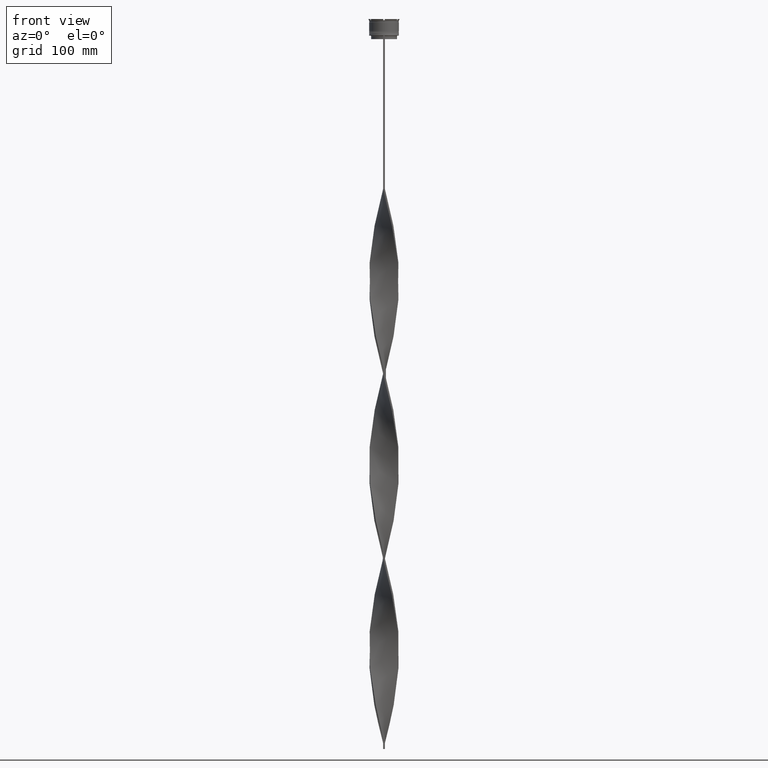
[diagram: clean part render]
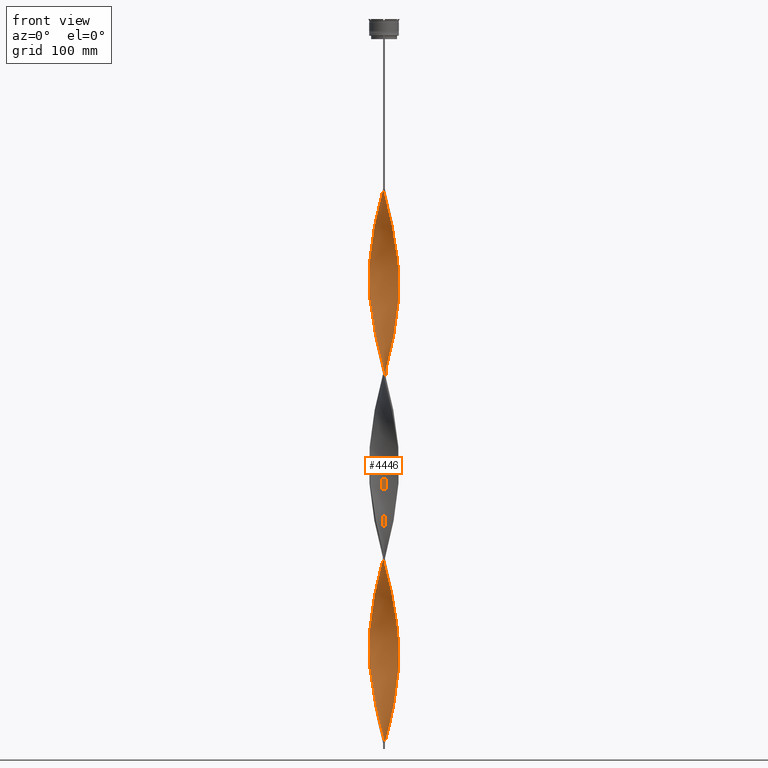
[diagram: same view with one face highlighted and labeled with its STEP entity id]
A machine part, front view. The second image highlights one B-rep face of the part: STEP entity #4446.
In plain terms, the highlighted face is a freeform B-spline surface patch.
Its self-contained STEP definition (entity closure, byte-faithful):
#5 = CARTESIAN_POINT ( 'NONE',  ( 12.13805464816931767, -3.078981870368072915, -211.3466666666666924 ) ) ;
#6 = CARTESIAN_POINT ( 'NONE',  ( -10.61346148680154933, -6.692356773673695081, -245.5200000000000387 ) ) ;
#8 = CARTESIAN_POINT ( 'NONE',  ( -0.7499999999999997780, -12.50000000000000000, -453.6666666666667425 ) ) ;
#24 = CARTESIAN_POINT ( 'NONE',  ( 11.33752076354115701, 5.375297838653134264, -245.5200000000000387 ) ) ;
#25 = CARTESIAN_POINT ( 'NONE',  ( -10.99100368715144072, -6.000861433912923815, -242.4133333333333553 ) ) ;
#26 = CARTESIAN_POINT ( 'NONE',  ( -7.404526080593742066, 10.12947172560163622, -332.5066666666667743 ) ) ;
#51 = CARTESIAN_POINT ( 'NONE',  ( 12.31811391348432494, -2.386896213156295410, -363.5733333333334372 ) ) ;
#54 = CARTESIAN_POINT ( 'NONE',  ( -12.42824121570641083, 1.533401540437618671, -372.8933333333333735 ) ) ;
#74 = CARTESIAN_POINT ( 'NONE',  ( -10.57441756647771136, -6.753880147568771086, -407.0666666666666629 ) ) ;
#75 = CARTESIAN_POINT ( 'NONE',  ( -11.94434152831508911, -3.842643539664264640, -233.0933333333333906 ) ) ;
#76 = CARTESIAN_POINT ( 'NONE',  ( -11.36854588750133388, 5.309366094152150772, -357.3600000000000705 ) ) ;
#93 = CARTESIAN_POINT ( 'NONE',  ( -12.31811391348432316, -2.386896213156301183, -388.4266666666667334 ) ) ;
#96 = CARTESIAN_POINT ( 'NONE',  ( -12.31811391348432316, 2.386896213156299407, -518.9066666666666379 ) ) ;
#97 = CARTESIAN_POINT ( 'NONE',  ( 12.52013932661148310, 0.8242057753937857001, -537.5466666666667379 ) ) ;
#117 = CARTESIAN_POINT ( 'NONE',  ( -12.52242699500038015, -0.03636144779521806314, -379.1066666666666833 ) ) ;
#119 = CARTESIAN_POINT ( 'NONE',  ( -12.13805464816931412, -3.078981870368076912, -540.6533333333334213 ) ) ;
#121 = CARTESIAN_POINT ( 'NONE',  ( 1.536433340670619208, 12.45281399955976553, -605.8933333333335440 ) ) ;
#132 = CARTESIAN_POINT ( 'NONE',  ( -2.382186218714212433, -12.29380692948152820, -285.9066666666666947 ) ) ;
#144 = CARTESIAN_POINT ( 'NONE',  ( -11.65644370790820794, 4.576004816908209705, -360.4666666666666970 ) ) ;
#147 = CARTESIAN_POINT ( 'NONE',  ( -8.010112353542547581, -9.625518172214162504, -571.7200000000000273 ) ) ;
#148 = CARTESIAN_POINT ( 'NONE',  ( 10.15222897254094292, -7.331080881363969404, -503.3733333333334485 ) ) ;
#157 = CARTESIAN_POINT ( 'NONE',  ( 12.11996919947063134, -3.149420042465480130, -360.4666666666666970 ) ) ;
#168 = CARTESIAN_POINT ( 'NONE',  ( -9.153347542385850133, 8.545684803940460483, -341.8266666666667106 ) ) ;
#170 = CARTESIAN_POINT ( 'NONE',  ( -5.364690916238543217, -11.31514875612458226, -584.1466666666666470 ) ) ;
#172 = CARTESIAN_POINT ( 'NONE',  ( 3.835060960407158603, 11.92077209873424870, -596.5733333333333803 ) ) ;
#179 = EDGE_LOOP ( 'NONE', ( #1021, #1135, #2209, #2987 ) ) ;
#181 = CARTESIAN_POINT ( 'NONE',  ( 9.103565294674670128, -8.598697513321129193, -335.6133333333334008 ) ) ;
#195 = CARTESIAN_POINT ( 'NONE',  ( 2.382186218714211989, -12.29380692948152820, -466.0933333333333621 ) ) ;
#198 = CARTESIAN_POINT ( 'NONE',  ( -12.33176776802354446, -2.315320201071886963, -537.5466666666667379 ) ) ;
#199 = CARTESIAN_POINT ( 'NONE',  ( 12.52242699500038015, 0.03636144779521405246, -534.4400000000000546 ) ) ;
#213 = CARTESIAN_POINT ( 'NONE',  ( 12.33176776802354802, 2.315320201071885631, -382.2133333333333667 ) ) ;
#227 = CARTESIAN_POINT ( 'NONE',  ( 10.95596916500943685, 6.064588993110950454, -559.2933333333334076 ) ) ;
#236 = CARTESIAN_POINT ( 'NONE',  ( 11.33752076354115701, 5.375297838653134264, -245.5200000000000387 ) ) ;
#240 = CARTESIAN_POINT ( 'NONE',  ( -8.615698626491363754, -9.121564618826681681, -257.9466666666666583 ) ) ;
#251 = CARTESIAN_POINT ( 'NONE',  ( 8.562581101809282558, 9.171445294657461389, -574.8266666666665969 ) ) ;
#265 = CARTESIAN_POINT ( 'NONE',  ( -11.94434152831508911, -3.842643539664265084, -543.7599999999999909 ) ) ;
#270 = CARTESIAN_POINT ( 'NONE',  ( 0.7500000000000037748, -12.50000000000000000, -609.0000000000000000 ) ) ;
#276 = CARTESIAN_POINT ( 'NONE',  ( 8.615698626491365530, -9.121564618826679904, -494.0533333333333985 ) ) ;
#285 = CARTESIAN_POINT ( 'NONE',  ( -4.585052370405614752, 11.67949051451277143, -158.5333333333333883 ) ) ;
#288 = CARTESIAN_POINT ( 'NONE',  ( 11.62967262449904915, 4.643620855213894671, -242.4133333333333553 ) ) ;
#290 = CARTESIAN_POINT ( 'NONE',  ( 0.7500000000000037748, -12.50000000000000000, -609.0000000000000000 ) ) ;
#303 = CARTESIAN_POINT ( 'NONE',  ( 10.57441756647771847, 6.753880147568762204, -562.4000000000000909 ) ) ;
#315 = CARTESIAN_POINT ( 'NONE',  ( 7.404526080593739401, -10.12947172560163800, -177.1733333333333462 ) ) ;
#317 = CARTESIAN_POINT ( 'NONE',  ( -12.42824121570641083, -1.533401540437621113, -534.4400000000000546 ) ) ;
#329 = CARTESIAN_POINT ( 'NONE',  ( -12.42824121570641083, -1.533401540437621113, -223.7733333333333405 ) ) ;
#339 = CARTESIAN_POINT ( 'NONE',  ( -10.99100368715144072, -6.000861433912923815, -553.0800000000000409 ) ) ;
#357 = CARTESIAN_POINT ( 'NONE',  ( -5.298889272974662390, -11.34611265908963595, -435.0266666666667561 ) ) ;
#361 = CARTESIAN_POINT ( 'NONE',  ( -10.15222897254093937, -7.331080881363972068, -559.2933333333334076 ) ) ;
#382 = CARTESIAN_POINT ( 'NONE',  ( 11.94434152831508911, -3.842643539664263752, -208.2400000000000659 ) ) ;
#384 = CARTESIAN_POINT ( 'NONE',  ( -0.8225793935679430735, -12.49543369160420347, -292.1200000000000614 ) ) ;
#385 = CARTESIAN_POINT ( 'NONE',  ( -2.310751445539655613, -12.30743384125774753, -447.4533333333333758 ) ) ;
#408 = CARTESIAN_POINT ( 'NONE',  ( 12.33176776802354624, 2.315320201071885187, -382.2133333333334235 ) ) ;
#410 = CARTESIAN_POINT ( 'NONE',  ( -11.33752076354115523, -5.375297838653137816, -400.8533333333334099 ) ) ;
#427 = CARTESIAN_POINT ( 'NONE',  ( 12.52242699500038015, 0.03636144779521405246, -223.7733333333333405 ) ) ;
#428 = CARTESIAN_POINT ( 'NONE',  ( -11.65644370790820794, -4.576004816908209705, -236.2000000000000171 ) ) ;
#429 = CARTESIAN_POINT ( 'NONE',  ( 3.085069550408700678, 12.16205368295573130, -289.0133333333333212 ) ) ;
#451 = CARTESIAN_POINT ( 'NONE',  ( 1.536433340670621650, -12.45281399955976553, -301.4400000000000546 ) ) ;
#454 = CARTESIAN_POINT ( 'NONE',  ( -10.57441756647771136, -6.753880147568771086, -407.0666666666666629 ) ) ;
#476 = CARTESIAN_POINT ( 'NONE',  ( 1.536433340670619208, 12.45281399955976553, -295.2266666666667447 ) ) ;
#478 = CARTESIAN_POINT ( 'NONE',  ( 9.644549487540052368, -8.025949731984796998, -338.7200000000000273 ) ) ;
#479 =( BOUNDED_CURVE ( )  B_SPLINE_CURVE ( 2, ( #4848, #4747, #4356, #1383, #636, #285, #2879, #2198, #2174, #1776, #710, #4776, #1045, #1408, #2907, #2538, #3808, #2288, #2694, #3462, #4112, #794, #4200, #1941, #1180, #2653, #2243, #1574, #3784, #75, #428, #1894, #25, #6, #1913, #2309, #815, #3835, #2608, #773, #2267, #4484, #1550, #4502, #4155, #3044, #1482, #3410, #384, #843, #3365, #451, #4564, #3386, #2999, #2674, #2336, #1132, #3763, #3741, #2628, #3022, #3066, #478, #3437, #1201, #4132, #1963, #2977, #1112, #748, #51, #1501, #4173, #1522, #1874, #4544, #408, #4522, #1156, #942, #914, #2358, #4330, #4614, #4696, #4306, #2767, #1697, #3139, #2797, #3162, #2014, #964, #4665, #2457, #3935, #2041, #4636, #600, #549, #3543, #1329, #2824, #4250, #3567, #3958, #2437, #2095, #574, #3856, #3194, #498, #1228, #1248, #3482, #2067, #4275, #866, #2411, #2746, #96, #1592, #888, #2383, #1616, #4588, #198, #119, #3882, #3911, #3087, #2721, #1986, #4224, #3118, #522, #3513, #147, #1303, #1647, #1271, #170, #1668, #4038, #1040, #1821, #3220, #2192, #3618, #3243 ),
 .UNSPECIFIED., .F., .T. ) 
 B_SPLINE_CURVE_WITH_KNOTS ( ( 3, 2, 2, 2, 2, 2, 2, 2, 2, 2, 2, 2, 2, 2, 2, 2, 2, 2, 2, 2, 2, 2, 2, 2, 2, 2, 2, 2, 2, 2, 2, 2, 2, 2, 2, 2, 2, 2, 2, 2, 2, 2, 2, 2, 2, 2, 2, 2, 2, 2, 2, 2, 2, 2, 2, 2, 2, 2, 2, 2, 2, 2, 2, 2, 2, 2, 2, 2, 2, 2, 2, 2, 2, 2, 2, 3 ),
 ( 0.000000000000000000, 0.01000000000000000021, 0.02000000000000000042, 0.02999999999999999889, 0.04000000000000000083, 0.05000000000000000971, 0.05999999999999999778, 0.07000000000000000666, 0.08000000000000000167, 0.09000000000000001055, 0.1000000000000000194, 0.1100000000000000006, 0.1199999999999999956, 0.1300000000000000044, 0.1400000000000000133, 0.1499999999999999944, 0.1600000000000000033, 0.1700000000000000122, 0.1800000000000000211, 0.1900000000000000300, 0.2000000000000000389, 0.2099999999999999922, 0.2200000000000000011, 0.2300000000000000100, 0.2399999999999999911, 0.2500000000000000000, 0.2600000000000000089, 0.2700000000000000178, 0.2800000000000000266, 0.2899999999999999800, 0.2999999999999999889, 0.3099999999999999978, 0.3200000000000000067, 0.3300000000000000155, 0.3400000000000000244, 0.3499999999999999223, 0.3600000000000000422, 0.3699999999999999400, 0.3800000000000000600, 0.3899999999999999578, 0.4000000000000000777, 0.4099999999999999756, 0.4199999999999999845, 0.4299999999999999933, 0.4400000000000000022, 0.4500000000000000111, 0.4600000000000000200, 0.4699999999999999734, 0.4799999999999999822, 0.4899999999999999911, 0.5000000000000000000, 0.5100000000000000089, 0.5200000000000000178, 0.5300000000000000266, 0.5400000000000000355, 0.5500000000000000444, 0.5600000000000000533, 0.5699999999999999512, 0.5799999999999999600, 0.5899999999999999689, 0.5999999999999999778, 0.6099999999999999867, 0.6199999999999999956, 0.6300000000000000044, 0.6400000000000000133, 0.6500000000000000222, 0.6600000000000000311, 0.6700000000000000400, 0.6800000000000000488, 0.6899999999999999467, 0.6999999999999998446, 0.7099999999999999645, 0.7200000000000000844, 0.7299999999999999822, 0.7399999999999998801, 0.7500000000000000000 ),
 .UNSPECIFIED. ) 
 CURVE ( )  GEOMETRIC_REPRESENTATION_ITEM ( )  RATIONAL_B_SPLINE_CURVE ( ( 1.000000000000000000, 0.9980267284282715590, 1.000000000000000000, 0.9980267284282715590, 1.000000000000000000, 0.9980267284282715590, 1.000000000000000000, 0.9980267284282715590, 1.000000000000000000, 0.9980267284282715590, 1.000000000000000000, 0.9980267284282715590, 1.000000000000000000, 0.9980267284282715590, 1.000000000000000000, 0.9980267284282715590, 1.000000000000000000, 0.9980267284282715590, 1.000000000000000000, 0.9980267284282715590, 1.000000000000000000, 0.9980267284282715590, 1.000000000000000000, 0.9980267284282715590, 1.000000000000000000, 0.9980267284282715590, 1.000000000000000000, 0.9980267284282715590, 1.000000000000000000, 0.9980267284282715590, 1.000000000000000000, 0.9980267284282715590, 1.000000000000000000, 0.9980267284282715590, 1.000000000000000000, 0.9980267284282715590, 1.000000000000000000, 0.9980267284282715590, 1.000000000000000000, 0.9980267284282715590, 1.000000000000000000, 0.9980267284282715590, 1.000000000000000000, 0.9980267284282715590, 1.000000000000000000, 0.9980267284282715590, 1.000000000000000000, 0.9980267284282715590, 1.000000000000000000, 0.9980267284282715590, 1.000000000000000000, 0.9980267284282715590, 1.000000000000000000, 0.9980267284282715590, 1.000000000000000000, 0.9980267284282715590, 1.000000000000000000, 0.9980267284282715590, 1.000000000000000000, 0.9980267284282715590, 1.000000000000000000, 0.9980267284282715590, 1.000000000000000000, 0.9980267284282715590, 1.000000000000000000, 0.9980267284282715590, 1.000000000000000000, 0.9980267284282715590, 1.000000000000000000, 0.9980267284282715590, 1.000000000000000000, 0.9980267284282715590, 1.000000000000000000, 0.9980267284282715590, 1.000000000000000000, 0.9980267284282715590, 1.000000000000000000, 0.9980267284282715590, 1.000000000000000000, 0.9980267284282715590, 1.000000000000000000, 0.9980267284282715590, 1.000000000000000000, 0.9980267284282715590, 1.000000000000000000, 0.9980267284282715590, 1.000000000000000000, 0.9980267284282715590, 1.000000000000000000, 0.9980267284282715590, 1.000000000000000000, 0.9980267284282715590, 1.000000000000000000, 0.9980267284282715590, 1.000000000000000000, 0.9980267284282715590, 1.000000000000000000, 0.9980267284282715590, 1.000000000000000000, 0.9980267284282715590, 1.000000000000000000, 0.9980267284282715590, 1.000000000000000000, 0.9980267284282715590, 1.000000000000000000, 0.9980267284282715590, 1.000000000000000000, 0.9980267284282715590, 1.000000000000000000, 0.9980267284282715590, 1.000000000000000000, 0.9980267284282715590, 1.000000000000000000, 0.9980267284282715590, 1.000000000000000000, 0.9980267284282715590, 1.000000000000000000, 0.9980267284282715590, 1.000000000000000000, 0.9980267284282715590, 1.000000000000000000, 0.9980267284282715590, 1.000000000000000000, 0.9980267284282715590, 1.000000000000000000, 0.9980267284282715590, 1.000000000000000000, 0.9980267284282715590, 1.000000000000000000, 0.9980267284282715590, 1.000000000000000000, 0.9980267284282715590, 1.000000000000000000, 0.9980267284282715590, 1.000000000000000000, 0.9980267284282715590, 1.000000000000000000, 0.9980267284282715590, 1.000000000000000000, 0.9980267284282715590, 1.000000000000000000, 0.9980267284282715590, 1.000000000000000000, 0.9980267284282715590, 1.000000000000000000, 0.9980267284282715590, 1.000000000000000000, 0.9980267284282715590, 1.000000000000000000, 0.9980267284282715590, 1.000000000000000000 ) ) 
 REPRESENTATION_ITEM ( '' )  );
#480 = CARTESIAN_POINT ( 'NONE',  ( 8.010112353542551134, -9.625518172214160728, -490.9466666666667152 ) ) ;
#495 = CARTESIAN_POINT ( 'NONE',  ( -6.076579735155671180, 10.97763101221075743, -326.2933333333333508 ) ) ;
#498 = CARTESIAN_POINT ( 'NONE',  ( -9.103565294674670128, 8.598697513321129193, -490.9466666666667152 ) ) ;
#499 = CARTESIAN_POINT ( 'NONE',  ( 9.690996458280338288, -7.969804989054245503, -500.2666666666666515 ) ) ;
#507 = CARTESIAN_POINT ( 'NONE',  ( 9.153347542385844804, 8.545684803940465812, -410.1733333333334031 ) ) ;
#520 = CARTESIAN_POINT ( 'NONE',  ( -12.41912662004790313, -1.605550994275048104, -385.3199999999999932 ) ) ;
#522 = CARTESIAN_POINT ( 'NONE',  ( -9.153347542385850133, -8.545684803940464036, -565.5066666666666606 ) ) ;
#534 = CARTESIAN_POINT ( 'NONE',  ( -9.153347542385850133, -8.545684803940464036, -254.8400000000000034 ) ) ;
#546 = CARTESIAN_POINT ( 'NONE',  ( 6.679150936304337982, 10.59251824497200900, -273.4800000000000750 ) ) ;
#549 = CARTESIAN_POINT ( 'NONE',  ( -0.7499999999999997780, 12.50000000000000000, -453.6666666666667425 ) ) ;
#558 = CARTESIAN_POINT ( 'NONE',  ( -8.010112353542547581, -9.625518172214162504, -261.0533333333333417 ) ) ;
#571 = CARTESIAN_POINT ( 'NONE',  ( 4.585052370405612088, 11.67949051451277143, -593.4666666666666970 ) ) ;
#574 = CARTESIAN_POINT ( 'NONE',  ( -7.345575697064967713, 10.17230168627752107, -481.6266666666667788 ) ) ;
#586 = CARTESIAN_POINT ( 'NONE',  ( 12.13805464816931412, 3.078981870368080909, -385.3199999999999932 ) ) ;
#597 = CARTESIAN_POINT ( 'NONE',  ( -6.012726175543712692, 11.01273480366649871, -164.7466666666667265 ) ) ;
#600 = CARTESIAN_POINT ( 'NONE',  ( 0.03643334067062083126, 12.54718600044023979, -450.5600000000000023 ) ) ;
#613 = CARTESIAN_POINT ( 'NONE',  ( 10.61346148680154933, 6.692356773673698633, -400.8533333333334099 ) ) ;
#629 = CARTESIAN_POINT ( 'NONE',  ( 11.94434152831508911, -3.842643539664263752, -518.9066666666665242 ) ) ;
#636 = CARTESIAN_POINT ( 'NONE',  ( -3.835060960407158159, 11.92077209873424870, -155.4266666666666765 ) ) ;
#638 = CARTESIAN_POINT ( 'NONE',  ( 7.954078399437126023, 9.671873490467488566, -267.2666666666667084 ) ) ;
#643 = CARTESIAN_POINT ( 'NONE',  ( -3.904224544142283815, -11.89829948811665261, -590.3600000000000136 ) ) ;
#653 = CARTESIAN_POINT ( 'NONE',  ( 2.310751445539659610, 12.30743384125774575, -602.7866666666667470 ) ) ;
#661 = CARTESIAN_POINT ( 'NONE',  ( 0.8225793935679449609, -12.49543369160420347, -149.2133333333333383 ) ) ;
#663 = CARTESIAN_POINT ( 'NONE',  ( -8.562581101809286110, 9.171445294657459613, -487.8400000000000887 ) ) ;
#673 = CARTESIAN_POINT ( 'NONE',  ( 10.15222897254094292, -7.331080881363969404, -503.3733333333334485 ) ) ;
#689 = CARTESIAN_POINT ( 'NONE',  ( -12.52242699500038015, 0.03636144779521285897, -528.2266666666666879 ) ) ;
#701 = CARTESIAN_POINT ( 'NONE',  ( -11.33752076354116056, 5.375297838653130711, -195.8133333333333610 ) ) ;
#710 = CARTESIAN_POINT ( 'NONE',  ( -7.954078399437124247, 9.671873490467490342, -174.0666666666666629 ) ) ;
#713 = CARTESIAN_POINT ( 'NONE',  ( -12.52013932661148665, 0.8242057753937841458, -525.1200000000001182 ) ) ;
#731 = CARTESIAN_POINT ( 'NONE',  ( 12.42824121570641083, -1.533401540437619781, -217.5600000000000307 ) ) ;
#734 = CARTESIAN_POINT ( 'NONE',  ( -0.7499999999999997780, 12.50000000000000000, -453.6666666666667425 ) ) ;
#747 = CARTESIAN_POINT ( 'NONE',  ( 8.010112353542551134, -9.625518172214160728, -180.2800000000000296 ) ) ;
#748 = CARTESIAN_POINT ( 'NONE',  ( 12.11996919947063134, -3.149420042465480130, -360.4666666666666970 ) ) ;
#749 = CARTESIAN_POINT ( 'NONE',  ( -12.13805464816931767, 3.078981870368074247, -366.6800000000000068 ) ) ;
#773 = CARTESIAN_POINT ( 'NONE',  ( -7.404526080593735848, -10.12947172560163978, -264.1600000000000819 ) ) ;
#775 = CARTESIAN_POINT ( 'NONE',  ( 3.904224544142286479, -11.89829948811665083, -472.3066666666667288 ) ) ;
#794 = CARTESIAN_POINT ( 'NONE',  ( -12.31811391348432316, 2.386896213156299407, -208.2400000000000659 ) ) ;
#795 = CARTESIAN_POINT ( 'NONE',  ( -12.52471466338928074, 0.7514828798033587054, -376.0000000000000568 ) ) ;
#814 = CARTESIAN_POINT ( 'NONE',  ( -0.7499999999999997780, -12.50000000000000000, -143.0000000000000284 ) ) ;
#815 = CARTESIAN_POINT ( 'NONE',  ( -9.153347542385850133, -8.545684803940464036, -254.8400000000000034 ) ) ;
#816 = CARTESIAN_POINT ( 'NONE',  ( -9.690996458280336512, 7.969804989054249056, -344.9333333333334508 ) ) ;
#841 = CARTESIAN_POINT ( 'NONE',  ( -2.310751445539655613, -12.30743384125774753, -447.4533333333333758 ) ) ;
#843 = CARTESIAN_POINT ( 'NONE',  ( -0.03643334067061931858, -12.54718600044023979, -295.2266666666667447 ) ) ;
#845 = CARTESIAN_POINT ( 'NONE',  ( 11.33752076354115701, 5.375297838653134264, -556.1866666666668380 ) ) ;
#863 = CARTESIAN_POINT ( 'NONE',  ( 0.7499999999999957812, 12.50000000000000000, -298.3333333333333144 ) ) ;
#866 = CARTESIAN_POINT ( 'NONE',  ( -11.62967262449904915, 4.643620855213893783, -509.5866666666666447 ) ) ;
#868 = CARTESIAN_POINT ( 'NONE',  ( 9.153347542385850133, -8.545684803940462260, -497.1600000000000250 ) ) ;
#876 = CARTESIAN_POINT ( 'NONE',  ( 12.52242699500038015, -0.03636144779521166548, -372.8933333333333735 ) ) ;
#886 = CARTESIAN_POINT ( 'NONE',  ( -9.690996458280336512, 7.969804989054249056, -344.9333333333334508 ) ) ;
#888 = CARTESIAN_POINT ( 'NONE',  ( -12.52013932661148488, 0.8242057753937841458, -525.1200000000001182 ) ) ;
#889 = CARTESIAN_POINT ( 'NONE',  ( 8.562581101809280781, 9.171445294657461389, -574.8266666666667106 ) ) ;
#890 = VERTEX_POINT ( 'NONE', #270 ) ;
#898 = CARTESIAN_POINT ( 'NONE',  ( 11.33752076354115879, -5.375297838653132487, -351.1466666666667606 ) ) ;
#911 = CARTESIAN_POINT ( 'NONE',  ( -12.52013932661148665, -0.8242057753937839237, -382.2133333333333667 ) ) ;
#914 = CARTESIAN_POINT ( 'NONE',  ( 11.36854588750133033, 5.309366094152156101, -394.6400000000000432 ) ) ;
#927 = CARTESIAN_POINT ( 'NONE',  ( -10.61346148680155110, -6.692356773673695081, -245.5200000000000387 ) ) ;
#940 = CARTESIAN_POINT ( 'NONE',  ( -5.364690916238544993, 11.31514875612458226, -323.1866666666667243 ) ) ;
#942 = CARTESIAN_POINT ( 'NONE',  ( 11.65644370790820972, 4.576004816908206152, -391.5333333333334167 ) ) ;
#950 =( BOUNDED_SURFACE ( )  B_SPLINE_SURFACE ( 1, 2, ( 
 ( #814, #3762, #3340, #2651, #1873, #3250, #4753, #2976, #1480, #1388, #3409, #4110, #747, #3385, #2242, #2883, #1548, #1911, #4154, #1893, #4483, #382, #5, #1500, #4543, #4388, #427, #1179, #4846, #2521, #2998, #4501, #1130, #24, #4131, #2287, #4521, #3783, #4612, #2744, #2333, #1301, #546, #3540, #2038, #3833, #4662, #1590, #1983, #476, #863, #4634, #3509, #2691, #2408, #1268, #3084, #2380, #940, #495, #1644, #3458, #2795, #3115, #168, #886, #3480, #3879, #1245, #3136, #144, #2764, #4303, #4248, #4272, #2435, #117, #911, #520, #93, #2012, #3906, #3436, #3933, #1939, #74, #1666, #2718, #4222, #4586, #1572, #3160, #3065, #4563, #1961, #1199, #4198, #1226, #841, #2356, #3854, #1614, #3616, #3989, #195, #3218, #2920, #3241, #4376, #2554, #4327, #962, #1037, #276, #1745, #1327, #673, #1375, #4036, #1017, #986, #629, #3956, #2510, #1401, #4766, #4425, #1695, #4718, #1352, #1767, #2870, #4349, #4790, #227, #303, #2898, #4740, #2165, #251, #1798, #1423, #2455, #1060, #3635, #571, #4401, #4014, #653, #2065, #2140 ),
 ( #3660, #3565, #2531, #3192, #3288, #2822, #4694, #597, #2093, #1723, #3593, #2843, #3265, #2481, #2117, #3685, #1819, #701, #3310, #4813, #1445, #2944, #4453, #1085, #4060, #2190, #329, #4680, #1656, #2833, #951, #3495, #4317, #927, #1285, #2369, #534, #240, #558, #1680, #4730, #1633, #3127, #3207, #2446, #3921, #132, #4340, #3554, #1342, #3177, #3149, #2781, #1257, #1315, #3579, #2078, #1734, #3866, #2027, #3527, #3947, #181, #4648, #3231, #2731, #2395, #898, #4234, #975, #157, #4288, #2811, #2424, #876, #2467, #3973, #213, #586, #3893, #2052, #1711, #4707, #613, #3607, #2108, #507, #4260, #1996, #4624, #2754, #2223, #3675, #1389, #4072, #4779, #4364, #4049, #2177, #1755, #734, #4825, #2957, #1461, #4414, #1855, #1810, #3299, #4801, #1095, #2591, #663, #4468, #3717, #3696, #3346, #1830, #3627, #4092, #3252, #2498, #2522, #4754, #713, #689, #2127, #317, #4025, #1047, #265, #1435, #2931, #339, #4438, #361, #1363, #1073, #1412, #2569, #4004, #2201, #2857, #3647, #1004, #643, #2885, #4389, #3322, #1028, #2151, #290 ) ),
 .UNSPECIFIED., .F., .F., .F. ) 
 B_SPLINE_SURFACE_WITH_KNOTS ( ( 2, 2 ),
 ( 3, 2, 2, 2, 2, 2, 2, 2, 2, 2, 2, 2, 2, 2, 2, 2, 2, 2, 2, 2, 2, 2, 2, 2, 2, 2, 2, 2, 2, 2, 2, 2, 2, 2, 2, 2, 2, 2, 2, 2, 2, 2, 2, 2, 2, 2, 2, 2, 2, 2, 2, 2, 2, 2, 2, 2, 2, 2, 2, 2, 2, 2, 2, 2, 2, 2, 2, 2, 2, 2, 2, 2, 2, 2, 2, 3 ),
 ( 0.000000000000000000, 1.000000000000000000 ),
 ( 0.000000000000000000, 0.01000000000000000021, 0.02000000000000000042, 0.02999999999999999889, 0.04000000000000000083, 0.05000000000000000278, 0.05999999999999999778, 0.07000000000000000666, 0.08000000000000000167, 0.08999999999999999667, 0.1000000000000000056, 0.1100000000000000006, 0.1199999999999999956, 0.1300000000000000044, 0.1400000000000000133, 0.1499999999999999944, 0.1600000000000000033, 0.1700000000000000122, 0.1799999999999999933, 0.1900000000000000022, 0.2000000000000000111, 0.2099999999999999922, 0.2200000000000000011, 0.2300000000000000100, 0.2399999999999999911, 0.2500000000000000000, 0.2600000000000000089, 0.2700000000000000178, 0.2800000000000000266, 0.2899999999999999800, 0.2999999999999999889, 0.3099999999999999978, 0.3200000000000000067, 0.3300000000000000155, 0.3400000000000000244, 0.3499999999999999778, 0.3599999999999999867, 0.3699999999999999956, 0.3800000000000000044, 0.3900000000000000133, 0.4000000000000000222, 0.4099999999999999756, 0.4199999999999999845, 0.4299999999999999933, 0.4400000000000000022, 0.4500000000000000111, 0.4600000000000000200, 0.4699999999999999734, 0.4799999999999999822, 0.4899999999999999911, 0.5000000000000000000, 0.5100000000000000089, 0.5200000000000000178, 0.5300000000000000266, 0.5400000000000000355, 0.5500000000000000444, 0.5600000000000000533, 0.5699999999999999512, 0.5799999999999999600, 0.5899999999999999689, 0.5999999999999999778, 0.6099999999999999867, 0.6199999999999999956, 0.6300000000000000044, 0.6400000000000000133, 0.6500000000000000222, 0.6600000000000000311, 0.6700000000000000400, 0.6800000000000000488, 0.6899999999999999467, 0.6999999999999999556, 0.7099999999999999645, 0.7199999999999999734, 0.7299999999999999822, 0.7399999999999999911, 0.7500000000000000000 ),
 .UNSPECIFIED. ) 
 GEOMETRIC_REPRESENTATION_ITEM ( )  RATIONAL_B_SPLINE_SURFACE ( (
 ( 1.000000000000000000, 0.9980267284282715590, 1.000000000000000000, 0.9980267284282715590, 1.000000000000000000, 0.9980267284282715590, 1.000000000000000000, 0.9980267284282715590, 1.000000000000000000, 0.9980267284282715590, 1.000000000000000000, 0.9980267284282715590, 1.000000000000000000, 0.9980267284282715590, 1.000000000000000000, 0.9980267284282715590, 1.000000000000000000, 0.9980267284282715590, 1.000000000000000000, 0.9980267284282715590, 1.000000000000000000, 0.9980267284282715590, 1.000000000000000000, 0.9980267284282715590, 1.000000000000000000, 0.9980267284282715590, 1.000000000000000000, 0.9980267284282715590, 1.000000000000000000, 0.9980267284282715590, 1.000000000000000000, 0.9980267284282715590, 1.000000000000000000, 0.9980267284282715590, 1.000000000000000000, 0.9980267284282715590, 1.000000000000000000, 0.9980267284282715590, 1.000000000000000000, 0.9980267284282715590, 1.000000000000000000, 0.9980267284282715590, 1.000000000000000000, 0.9980267284282715590, 1.000000000000000000, 0.9980267284282715590, 1.000000000000000000, 0.9980267284282715590, 1.000000000000000000, 0.9980267284282715590, 1.000000000000000000, 0.9980267284282715590, 1.000000000000000000, 0.9980267284282715590, 1.000000000000000000, 0.9980267284282715590, 1.000000000000000000, 0.9980267284282715590, 1.000000000000000000, 0.9980267284282715590, 1.000000000000000000, 0.9980267284282715590, 1.000000000000000000, 0.9980267284282715590, 1.000000000000000000, 0.9980267284282715590, 1.000000000000000000, 0.9980267284282715590, 1.000000000000000000, 0.9980267284282715590, 1.000000000000000000, 0.9980267284282715590, 1.000000000000000000, 0.9980267284282715590, 1.000000000000000000, 0.9980267284282715590, 1.000000000000000000, 0.9980267284282715590, 1.000000000000000000, 0.9980267284282715590, 1.000000000000000000, 0.9980267284282715590, 1.000000000000000000, 0.9980267284282715590, 1.000000000000000000, 0.9980267284282715590, 1.000000000000000000, 0.9980267284282715590, 1.000000000000000000, 0.9980267284282715590, 1.000000000000000000, 0.9980267284282715590, 1.000000000000000000, 0.9980267284282715590, 1.000000000000000000, 0.9980267284282715590, 1.000000000000000000, 0.9980267284282715590, 1.000000000000000000, 0.9980267284282715590, 1.000000000000000000, 0.9980267284282715590, 1.000000000000000000, 0.9980267284282715590, 1.000000000000000000, 0.9980267284282715590, 1.000000000000000000, 0.9980267284282715590, 1.000000000000000000, 0.9980267284282715590, 1.000000000000000000, 0.9980267284282715590, 1.000000000000000000, 0.9980267284282715590, 1.000000000000000000, 0.9980267284282715590, 1.000000000000000000, 0.9980267284282715590, 1.000000000000000000, 0.9980267284282715590, 1.000000000000000000, 0.9980267284282715590, 1.000000000000000000, 0.9980267284282715590, 1.000000000000000000, 0.9980267284282715590, 1.000000000000000000, 0.9980267284282715590, 1.000000000000000000, 0.9980267284282715590, 1.000000000000000000, 0.9980267284282715590, 1.000000000000000000, 0.9980267284282715590, 1.000000000000000000, 0.9980267284282715590, 1.000000000000000000, 0.9980267284282715590, 1.000000000000000000, 0.9980267284282715590, 1.000000000000000000, 0.9980267284282715590, 1.000000000000000000, 0.9980267284282715590, 1.000000000000000000, 0.9980267284282715590, 1.000000000000000000, 0.9980267284282715590, 1.000000000000000000, 0.9980267284282715590, 1.000000000000000000),
 ( 1.000000000000000000, 0.9980267284282715590, 1.000000000000000000, 0.9980267284282715590, 1.000000000000000000, 0.9980267284282715590, 1.000000000000000000, 0.9980267284282715590, 1.000000000000000000, 0.9980267284282715590, 1.000000000000000000, 0.9980267284282715590, 1.000000000000000000, 0.9980267284282715590, 1.000000000000000000, 0.9980267284282715590, 1.000000000000000000, 0.9980267284282715590, 1.000000000000000000, 0.9980267284282715590, 1.000000000000000000, 0.9980267284282715590, 1.000000000000000000, 0.9980267284282715590, 1.000000000000000000, 0.9980267284282715590, 1.000000000000000000, 0.9980267284282715590, 1.000000000000000000, 0.9980267284282715590, 1.000000000000000000, 0.9980267284282715590, 1.000000000000000000, 0.9980267284282715590, 1.000000000000000000, 0.9980267284282715590, 1.000000000000000000, 0.9980267284282715590, 1.000000000000000000, 0.9980267284282715590, 1.000000000000000000, 0.9980267284282715590, 1.000000000000000000, 0.9980267284282715590, 1.000000000000000000, 0.9980267284282715590, 1.000000000000000000, 0.9980267284282715590, 1.000000000000000000, 0.9980267284282715590, 1.000000000000000000, 0.9980267284282715590, 1.000000000000000000, 0.9980267284282715590, 1.000000000000000000, 0.9980267284282715590, 1.000000000000000000, 0.9980267284282715590, 1.000000000000000000, 0.9980267284282715590, 1.000000000000000000, 0.9980267284282715590, 1.000000000000000000, 0.9980267284282715590, 1.000000000000000000, 0.9980267284282715590, 1.000000000000000000, 0.9980267284282715590, 1.000000000000000000, 0.9980267284282715590, 1.000000000000000000, 0.9980267284282715590, 1.000000000000000000, 0.9980267284282715590, 1.000000000000000000, 0.9980267284282715590, 1.000000000000000000, 0.9980267284282715590, 1.000000000000000000, 0.9980267284282715590, 1.000000000000000000, 0.9980267284282715590, 1.000000000000000000, 0.9980267284282715590, 1.000000000000000000, 0.9980267284282715590, 1.000000000000000000, 0.9980267284282715590, 1.000000000000000000, 0.9980267284282715590, 1.000000000000000000, 0.9980267284282715590, 1.000000000000000000, 0.9980267284282715590, 1.000000000000000000, 0.9980267284282715590, 1.000000000000000000, 0.9980267284282715590, 1.000000000000000000, 0.9980267284282715590, 1.000000000000000000, 0.9980267284282715590, 1.000000000000000000, 0.9980267284282715590, 1.000000000000000000, 0.9980267284282715590, 1.000000000000000000, 0.9980267284282715590, 1.000000000000000000, 0.9980267284282715590, 1.000000000000000000, 0.9980267284282715590, 1.000000000000000000, 0.9980267284282715590, 1.000000000000000000, 0.9980267284282715590, 1.000000000000000000, 0.9980267284282715590, 1.000000000000000000, 0.9980267284282715590, 1.000000000000000000, 0.9980267284282715590, 1.000000000000000000, 0.9980267284282715590, 1.000000000000000000, 0.9980267284282715590, 1.000000000000000000, 0.9980267284282715590, 1.000000000000000000, 0.9980267284282715590, 1.000000000000000000, 0.9980267284282715590, 1.000000000000000000, 0.9980267284282715590, 1.000000000000000000, 0.9980267284282715590, 1.000000000000000000, 0.9980267284282715590, 1.000000000000000000, 0.9980267284282715590, 1.000000000000000000, 0.9980267284282715590, 1.000000000000000000, 0.9980267284282715590, 1.000000000000000000, 0.9980267284282715590, 1.000000000000000000, 0.9980267284282715590, 1.000000000000000000, 0.9980267284282715590, 1.000000000000000000) ) ) 
 REPRESENTATION_ITEM ( '' )  SURFACE ( )  );
#951 = CARTESIAN_POINT ( 'NONE',  ( -11.65644370790820794, -4.576004816908209705, -236.2000000000000171 ) ) ;
#962 = CARTESIAN_POINT ( 'NONE',  ( 7.404526080593739401, -10.12947172560163800, -487.8400000000000887 ) ) ;
#964 = CARTESIAN_POINT ( 'NONE',  ( 4.652802097321410812, 11.65266650003840887, -431.9200000000000728 ) ) ;
#975 = CARTESIAN_POINT ( 'NONE',  ( 11.92182448545694129, -3.911943871774655523, -357.3600000000001273 ) ) ;
#986 = CARTESIAN_POINT ( 'NONE',  ( 11.65644370790820794, -4.576004816908208817, -515.8000000000000682 ) ) ;
#999 = CARTESIAN_POINT ( 'NONE',  ( 8.562581101809280781, 9.171445294657461389, -264.1600000000000819 ) ) ;
#1004 = CARTESIAN_POINT ( 'NONE',  ( -4.652802097321415253, -11.65266650003840887, -587.2533333333335577 ) ) ;
#1017 = CARTESIAN_POINT ( 'NONE',  ( 11.36854588750133388, -5.309366094152150772, -512.6933333333333849 ) ) ;
#1021 = ORIENTED_EDGE ( 'NONE', *, *, #3021, .T. ) ;
#1026 = CARTESIAN_POINT ( 'NONE',  ( 12.11996919947063134, 3.149420042465480130, -236.2000000000000171 ) ) ;
#1028 = CARTESIAN_POINT ( 'NONE',  ( -0.8225793935679430735, -12.49543369160420347, -602.7866666666667470 ) ) ;
#1037 = CARTESIAN_POINT ( 'NONE',  ( 8.010112353542551134, -9.625518172214160728, -490.9466666666667152 ) ) ;
#1040 = CARTESIAN_POINT ( 'NONE',  ( -3.155646990963152820, -12.14393247619489813, -593.4666666666666970 ) ) ;
#1045 = CARTESIAN_POINT ( 'NONE',  ( -9.103565294674670128, 8.598697513321129193, -180.2800000000000296 ) ) ;
#1047 = CARTESIAN_POINT ( 'NONE',  ( -12.13805464816931412, -3.078981870368076912, -540.6533333333334213 ) ) ;
#1060 = CARTESIAN_POINT ( 'NONE',  ( 6.012726175543710028, 11.01273480366650048, -587.2533333333335577 ) ) ;
#1070 = CARTESIAN_POINT ( 'NONE',  ( 0.03643334067062224679, -12.54718600044023979, -146.1066666666667118 ) ) ;
#1073 = CARTESIAN_POINT ( 'NONE',  ( -9.153347542385850133, -8.545684803940464036, -565.5066666666666606 ) ) ;
#1085 = CARTESIAN_POINT ( 'NONE',  ( -12.52013932661148665, 0.8242057753937841458, -214.4533333333333758 ) ) ;
#1095 = CARTESIAN_POINT ( 'NONE',  ( -7.345575697064967713, 10.17230168627752107, -481.6266666666667788 ) ) ;
#1111 = FACE_OUTER_BOUND ( 'NONE', #179, .T. ) ;
#1112 = CARTESIAN_POINT ( 'NONE',  ( 11.92182448545694129, -3.911943871774655079, -357.3600000000000705 ) ) ;
#1113 = CARTESIAN_POINT ( 'NONE',  ( -3.835060960407154163, -11.92077209873424870, -441.2400000000000091 ) ) ;
#1130 = CARTESIAN_POINT ( 'NONE',  ( 11.62967262449904915, 4.643620855213894671, -242.4133333333333553 ) ) ;
#1132 = CARTESIAN_POINT ( 'NONE',  ( 6.012726175543710916, -11.01273480366649871, -320.0800000000000978 ) ) ;
#1133 = CARTESIAN_POINT ( 'NONE',  ( -12.33176776802354624, 2.315320201071879413, -369.7866666666666902 ) ) ;
#1135 = ORIENTED_EDGE ( 'NONE', *, *, #1573, .T. ) ;
#1156 = CARTESIAN_POINT ( 'NONE',  ( 11.94434152831508911, 3.842643539664265528, -388.4266666666667334 ) ) ;
#1157 = CARTESIAN_POINT ( 'NONE',  ( 0.8225793935679449609, -12.49543369160420347, -459.8799999999999955 ) ) ;
#1179 = CARTESIAN_POINT ( 'NONE',  ( 12.52013932661148488, 0.8242057753937857001, -226.8800000000000523 ) ) ;
#1180 = CARTESIAN_POINT ( 'NONE',  ( -12.52242699500038015, 0.03636144779521285897, -217.5600000000000307 ) ) ;
#1181 = CARTESIAN_POINT ( 'NONE',  ( 1.536433340670619208, 12.45281399955976553, -295.2266666666667447 ) ) ;
#1199 = CARTESIAN_POINT ( 'NONE',  ( -4.585052370405607647, -11.67949051451277320, -438.1333333333334394 ) ) ;
#1201 = CARTESIAN_POINT ( 'NONE',  ( 10.57441756647771669, -6.753880147568765757, -344.9333333333334508 ) ) ;
#1203 = CARTESIAN_POINT ( 'NONE',  ( -7.345575697064964160, -10.17230168627752107, -425.7066666666667061 ) ) ;
#1226 = CARTESIAN_POINT ( 'NONE',  ( -3.085069550408702010, -12.16205368295573130, -444.3466666666667493 ) ) ;
#1228 = CARTESIAN_POINT ( 'NONE',  ( -9.644549487540052368, 8.025949731984796998, -494.0533333333333985 ) ) ;
#1229 = CARTESIAN_POINT ( 'NONE',  ( 11.36854588750133388, -5.309366094152150772, -512.6933333333334986 ) ) ;
#1245 = CARTESIAN_POINT ( 'NONE',  ( -10.99100368715144427, 6.000861433912916709, -354.2533333333333871 ) ) ;
#1248 = CARTESIAN_POINT ( 'NONE',  ( -10.10948352700888364, 7.389914939776779157, -497.1600000000000250 ) ) ;
#1250 = CARTESIAN_POINT ( 'NONE',  ( 10.57441756647771847, 6.753880147568762204, -562.4000000000000909 ) ) ;
#1257 = CARTESIAN_POINT ( 'NONE',  ( 3.085069550408703343, -12.16205368295572953, -307.6533333333334213 ) ) ;
#1268 = CARTESIAN_POINT ( 'NONE',  ( -3.155646990963159482, 12.14393247619489813, -313.8666666666666742 ) ) ;
#1271 = CARTESIAN_POINT ( 'NONE',  ( -6.076579735155671180, -10.97763101221075743, -581.0400000000000773 ) ) ;
#1272 = CARTESIAN_POINT ( 'NONE',  ( 12.11996919947063134, 3.149420042465480130, -546.8666666666666742 ) ) ;
#1285 = CARTESIAN_POINT ( 'NONE',  ( -10.15222897254093937, -7.331080881363972068, -248.6266666666666936 ) ) ;
#1301 = CARTESIAN_POINT ( 'NONE',  ( 7.345575697064967713, 10.17230168627752107, -270.3733333333333348 ) ) ;
#1303 = CARTESIAN_POINT ( 'NONE',  ( -7.404526080593735848, -10.12947172560163978, -574.8266666666667106 ) ) ;
#1315 = CARTESIAN_POINT ( 'NONE',  ( 3.835060960407161268, -11.92077209873424870, -310.7600000000000477 ) ) ;
#1327 = CARTESIAN_POINT ( 'NONE',  ( 9.690996458280338288, -7.969804989054246391, -500.2666666666666515 ) ) ;
#1329 = CARTESIAN_POINT ( 'NONE',  ( -2.310751445539661386, 12.30743384125774575, -459.8799999999999955 ) ) ;
#1342 = CARTESIAN_POINT ( 'NONE',  ( -0.03643334067061931858, -12.54718600044023979, -295.2266666666667447 ) ) ;
#1352 = CARTESIAN_POINT ( 'NONE',  ( 12.31811391348432316, 2.386896213156300295, -543.7599999999999909 ) ) ;
#1361 = CARTESIAN_POINT ( 'NONE',  ( 10.57441756647771847, 6.753880147568762204, -251.7333333333334338 ) ) ;
#1363 = CARTESIAN_POINT ( 'NONE',  ( -9.690996458280338288, -7.969804989054246391, -562.4000000000000909 ) ) ;
#1375 = CARTESIAN_POINT ( 'NONE',  ( 10.61346148680155466, -6.692356773673691528, -506.4800000000001887 ) ) ;
#1383 = CARTESIAN_POINT ( 'NONE',  ( -3.085069550408701566, 12.16205368295573130, -152.3200000000000500 ) ) ;
#1386 = CARTESIAN_POINT ( 'NONE',  ( 11.94434152831508911, -3.842643539664263752, -208.2400000000000659 ) ) ;
#1388 = CARTESIAN_POINT ( 'NONE',  ( 6.076579735155670292, -10.97763101221075921, -170.9600000000000080 ) ) ;
#1389 = CARTESIAN_POINT ( 'NONE',  ( 4.652802097321410812, 11.65266650003840887, -431.9200000000000728 ) ) ;
#1401 = CARTESIAN_POINT ( 'NONE',  ( 12.42824121570641083, -1.533401540437619781, -528.2266666666666879 ) ) ;
#1408 = CARTESIAN_POINT ( 'NONE',  ( -9.644549487540052368, 8.025949731984796998, -183.3866666666666845 ) ) ;
#1410 = CARTESIAN_POINT ( 'NONE',  ( 9.690996458280338288, -7.969804989054245503, -189.6000000000000227 ) ) ;
#1412 = CARTESIAN_POINT ( 'NONE',  ( -8.615698626491363754, -9.121564618826681681, -568.6133333333333439 ) ) ;
#1423 = CARTESIAN_POINT ( 'NONE',  ( 7.345575697064967713, 10.17230168627752107, -581.0400000000000773 ) ) ;
#1432 = CARTESIAN_POINT ( 'NONE',  ( 10.15222897254094292, -7.331080881363969404, -192.7066666666667061 ) ) ;
#1435 = CARTESIAN_POINT ( 'NONE',  ( -11.65644370790820794, -4.576004816908209705, -546.8666666666666742 ) ) ;
#1445 = CARTESIAN_POINT ( 'NONE',  ( -12.11996919947063134, 3.149420042465478353, -205.1333333333333542 ) ) ;
#1461 = CARTESIAN_POINT ( 'NONE',  ( -3.085069550408701566, 12.16205368295573130, -462.9866666666666788 ) ) ;
#1480 = CARTESIAN_POINT ( 'NONE',  ( 5.364690916238544105, -11.31514875612458226, -167.8533333333333530 ) ) ;
#1482 = CARTESIAN_POINT ( 'NONE',  ( -2.382186218714212433, -12.29380692948152820, -285.9066666666666947 ) ) ;
#1484 = CARTESIAN_POINT ( 'NONE',  ( -1.536433340670620540, -12.45281399955976553, -450.5600000000000023 ) ) ;
#1500 = CARTESIAN_POINT ( 'NONE',  ( 12.33176776802354802, -2.315320201071886075, -214.4533333333333758 ) ) ;
#1501 = CARTESIAN_POINT ( 'NONE',  ( 12.41912662004790313, -1.605550994275041443, -366.6800000000000068 ) ) ;
#1503 = CARTESIAN_POINT ( 'NONE',  ( -7.954078399437118918, -9.671873490467493895, -422.6000000000000227 ) ) ;
#1522 = CARTESIAN_POINT ( 'NONE',  ( 12.52242699500038015, -0.03636144779521166548, -372.8933333333333735 ) ) ;
#1524 = CARTESIAN_POINT ( 'NONE',  ( 6.076579735155671180, -10.97763101221075743, -481.6266666666667788 ) ) ;
#1538 = VECTOR ( 'NONE', #3590, 1000.000000000000000 ) ;
#1548 = CARTESIAN_POINT ( 'NONE',  ( 10.15222897254094292, -7.331080881363969404, -192.7066666666667061 ) ) ;
#1550 = CARTESIAN_POINT ( 'NONE',  ( -5.364690916238543217, -11.31514875612458226, -273.4800000000000750 ) ) ;
#1551 = CARTESIAN_POINT ( 'NONE',  ( -5.364690916238544993, 11.31514875612458226, -323.1866666666667243 ) ) ;
#1555 = CARTESIAN_POINT ( 'NONE',  ( -0.7499999999999997780, -12.50000000000000000, -143.0000000000000284 ) ) ;
#1572 = CARTESIAN_POINT ( 'NONE',  ( -7.954078399437118918, -9.671873490467493895, -422.6000000000000227 ) ) ;
#1573 = EDGE_CURVE ( 'NONE', #4646, #890, #479, .T. ) ;
#1574 = CARTESIAN_POINT ( 'NONE',  ( -12.33176776802354446, -2.315320201071886963, -226.8800000000000523 ) ) ;
#1575 = CARTESIAN_POINT ( 'NONE',  ( -9.153347542385850133, 8.545684803940460483, -341.8266666666667106 ) ) ;
#1590 = CARTESIAN_POINT ( 'NONE',  ( 3.085069550408700678, 12.16205368295573130, -289.0133333333333212 ) ) ;
#1592 = CARTESIAN_POINT ( 'NONE',  ( -12.41912662004790313, 1.605550994275040111, -522.0133333333334349 ) ) ;
#1593 = CARTESIAN_POINT ( 'NONE',  ( 9.644549487540050592, 8.025949731984798774, -568.6133333333334576 ) ) ;
#1614 = CARTESIAN_POINT ( 'NONE',  ( 0.03643334067062224679, -12.54718600044023979, -456.7733333333334258 ) ) ;
#1616 = CARTESIAN_POINT ( 'NONE',  ( -12.52471466338928074, -0.7514828798033584834, -531.3333333333335986 ) ) ;
#1619 = CARTESIAN_POINT ( 'NONE',  ( 0.7499999999999957812, 12.50000000000000000, -609.0000000000000000 ) ) ;
#1630 =( BOUNDED_CURVE ( )  B_SPLINE_CURVE ( 2, ( #2566, #1070, #661, #3249, #4750, #2588, #4022, #4045, #3297, #4068, #4434, #315, #1731, #1809, #1753, #1410, #1432, #3604, #4410, #4001, #4090, #1386, #2930, #4387, #731, #1827, #2199, #4822, #2176, #2881, #1026, #2519, #288, #236, #3227, #1361, #2852, #2149, #4359, #999, #638, #2125, #3643, #1779, #3624, #3275, #2539, #429, #2245, #1181, #2290, #2695, #1914, #2654, #3045, #2269, #4503, #3785, #1551, #3343, #3413, #26, #3024, #2610, #1575, #816, #3810, #2310, #4113, #76, #1875, #3764, #749, #1133, #54, #795, #3743, #4486, #4545, #3367, #4156, #2675, #4175, #410, #4202, #454, #1943, #3438, #3067, #4565, #1503, #1203, #2220, #3714, #357, #1853, #1113, #4849, #385, #1484, #8, #3000, #1157, #2979, #2630, #4134, #775, #1895, #3387, #1524, #4524, #2359, #480, #4308, #868, #499, #148, #2069, #3545, #1229, #3568, #3141, #3837, #2016, #1987, #4589, #199, #97, #3857, #1648, #1272, #4638, #3936, #845, #2768, #1250, #1964, #1593, #4615, #889, #4667, #2747, #4251, #4226, #4276, #1670, #172, #3196, #3463, #121, #1619 ),
 .UNSPECIFIED., .F., .T. ) 
 B_SPLINE_CURVE_WITH_KNOTS ( ( 3, 2, 2, 2, 2, 2, 2, 2, 2, 2, 2, 2, 2, 2, 2, 2, 2, 2, 2, 2, 2, 2, 2, 2, 2, 2, 2, 2, 2, 2, 2, 2, 2, 2, 2, 2, 2, 2, 2, 2, 2, 2, 2, 2, 2, 2, 2, 2, 2, 2, 2, 2, 2, 2, 2, 2, 2, 2, 2, 2, 2, 2, 2, 2, 2, 2, 2, 2, 2, 2, 2, 2, 2, 2, 2, 3 ),
 ( 0.000000000000000000, 0.01000000000000000021, 0.02000000000000000042, 0.02999999999999999889, 0.04000000000000000083, 0.05000000000000000971, 0.05999999999999999778, 0.07000000000000000666, 0.08000000000000000167, 0.09000000000000001055, 0.1000000000000000194, 0.1100000000000000006, 0.1199999999999999956, 0.1300000000000000044, 0.1400000000000000133, 0.1499999999999999944, 0.1600000000000000033, 0.1700000000000000122, 0.1800000000000000211, 0.1900000000000000300, 0.2000000000000000389, 0.2099999999999999922, 0.2200000000000000011, 0.2300000000000000100, 0.2399999999999999911, 0.2500000000000000000, 0.2600000000000000089, 0.2700000000000000178, 0.2800000000000000266, 0.2899999999999999800, 0.2999999999999999889, 0.3099999999999999978, 0.3200000000000000067, 0.3300000000000000155, 0.3400000000000000244, 0.3499999999999999223, 0.3600000000000000422, 0.3699999999999999400, 0.3800000000000000600, 0.3899999999999999578, 0.4000000000000000777, 0.4099999999999999756, 0.4199999999999999845, 0.4299999999999999933, 0.4400000000000000022, 0.4500000000000000111, 0.4600000000000000200, 0.4699999999999999734, 0.4799999999999999822, 0.4899999999999999911, 0.5000000000000000000, 0.5100000000000000089, 0.5200000000000000178, 0.5300000000000000266, 0.5400000000000000355, 0.5500000000000000444, 0.5600000000000000533, 0.5699999999999999512, 0.5799999999999999600, 0.5899999999999999689, 0.5999999999999999778, 0.6099999999999999867, 0.6199999999999999956, 0.6300000000000000044, 0.6400000000000000133, 0.6500000000000000222, 0.6600000000000000311, 0.6700000000000000400, 0.6800000000000000488, 0.6899999999999999467, 0.6999999999999998446, 0.7099999999999999645, 0.7200000000000000844, 0.7299999999999999822, 0.7399999999999998801, 0.7500000000000000000 ),
 .UNSPECIFIED. ) 
 CURVE ( )  GEOMETRIC_REPRESENTATION_ITEM ( )  RATIONAL_B_SPLINE_CURVE ( ( 1.000000000000000000, 0.9980267284282715590, 1.000000000000000000, 0.9980267284282715590, 1.000000000000000000, 0.9980267284282715590, 1.000000000000000000, 0.9980267284282715590, 1.000000000000000000, 0.9980267284282715590, 1.000000000000000000, 0.9980267284282715590, 1.000000000000000000, 0.9980267284282715590, 1.000000000000000000, 0.9980267284282715590, 1.000000000000000000, 0.9980267284282715590, 1.000000000000000000, 0.9980267284282715590, 1.000000000000000000, 0.9980267284282715590, 1.000000000000000000, 0.9980267284282715590, 1.000000000000000000, 0.9980267284282715590, 1.000000000000000000, 0.9980267284282715590, 1.000000000000000000, 0.9980267284282715590, 1.000000000000000000, 0.9980267284282715590, 1.000000000000000000, 0.9980267284282715590, 1.000000000000000000, 0.9980267284282715590, 1.000000000000000000, 0.9980267284282715590, 1.000000000000000000, 0.9980267284282715590, 1.000000000000000000, 0.9980267284282715590, 1.000000000000000000, 0.9980267284282715590, 1.000000000000000000, 0.9980267284282715590, 1.000000000000000000, 0.9980267284282715590, 1.000000000000000000, 0.9980267284282715590, 1.000000000000000000, 0.9980267284282715590, 1.000000000000000000, 0.9980267284282715590, 1.000000000000000000, 0.9980267284282715590, 1.000000000000000000, 0.9980267284282715590, 1.000000000000000000, 0.9980267284282715590, 1.000000000000000000, 0.9980267284282715590, 1.000000000000000000, 0.9980267284282715590, 1.000000000000000000, 0.9980267284282715590, 1.000000000000000000, 0.9980267284282715590, 1.000000000000000000, 0.9980267284282715590, 1.000000000000000000, 0.9980267284282715590, 1.000000000000000000, 0.9980267284282715590, 1.000000000000000000, 0.9980267284282715590, 1.000000000000000000, 0.9980267284282715590, 1.000000000000000000, 0.9980267284282715590, 1.000000000000000000, 0.9980267284282715590, 1.000000000000000000, 0.9980267284282715590, 1.000000000000000000, 0.9980267284282715590, 1.000000000000000000, 0.9980267284282715590, 1.000000000000000000, 0.9980267284282715590, 1.000000000000000000, 0.9980267284282715590, 1.000000000000000000, 0.9980267284282715590, 1.000000000000000000, 0.9980267284282715590, 1.000000000000000000, 0.9980267284282715590, 1.000000000000000000, 0.9980267284282715590, 1.000000000000000000, 0.9980267284282715590, 1.000000000000000000, 0.9980267284282715590, 1.000000000000000000, 0.9980267284282715590, 1.000000000000000000, 0.9980267284282715590, 1.000000000000000000, 0.9980267284282715590, 1.000000000000000000, 0.9980267284282715590, 1.000000000000000000, 0.9980267284282715590, 1.000000000000000000, 0.9980267284282715590, 1.000000000000000000, 0.9980267284282715590, 1.000000000000000000, 0.9980267284282715590, 1.000000000000000000, 0.9980267284282715590, 1.000000000000000000, 0.9980267284282715590, 1.000000000000000000, 0.9980267284282715590, 1.000000000000000000, 0.9980267284282715590, 1.000000000000000000, 0.9980267284282715590, 1.000000000000000000, 0.9980267284282715590, 1.000000000000000000, 0.9980267284282715590, 1.000000000000000000, 0.9980267284282715590, 1.000000000000000000, 0.9980267284282715590, 1.000000000000000000, 0.9980267284282715590, 1.000000000000000000, 0.9980267284282715590, 1.000000000000000000, 0.9980267284282715590, 1.000000000000000000, 0.9980267284282715590, 1.000000000000000000, 0.9980267284282715590, 1.000000000000000000, 0.9980267284282715590, 1.000000000000000000 ) ) 
 REPRESENTATION_ITEM ( '' )  );
#1633 = CARTESIAN_POINT ( 'NONE',  ( -6.076579735155670292, -10.97763101221075921, -270.3733333333333348 ) ) ;
#1644 = CARTESIAN_POINT ( 'NONE',  ( -6.740552907874707067, 10.55355136890619505, -329.4000000000000341 ) ) ;
#1647 = CARTESIAN_POINT ( 'NONE',  ( -6.740552907874705291, -10.55355136890619683, -577.9333333333333940 ) ) ;
#1648 = CARTESIAN_POINT ( 'NONE',  ( 12.31811391348432316, 2.386896213156300739, -543.7599999999999909 ) ) ;
#1656 = CARTESIAN_POINT ( 'NONE',  ( -12.13805464816931412, -3.078981870368076912, -229.9866666666666788 ) ) ;
#1666 = CARTESIAN_POINT ( 'NONE',  ( -10.10948352700888186, -7.389914939776783598, -410.1733333333334031 ) ) ;
#1668 = CARTESIAN_POINT ( 'NONE',  ( -4.652802097321415253, -11.65266650003840887, -587.2533333333335577 ) ) ;
#1670 = CARTESIAN_POINT ( 'NONE',  ( 4.585052370405611200, 11.67949051451277143, -593.4666666666666970 ) ) ;
#1680 = CARTESIAN_POINT ( 'NONE',  ( -7.404526080593735848, -10.12947172560163978, -264.1600000000000819 ) ) ;
#1695 = CARTESIAN_POINT ( 'NONE',  ( 12.52013932661148488, 0.8242057753937857001, -537.5466666666667379 ) ) ;
#1697 = CARTESIAN_POINT ( 'NONE',  ( 8.010112353542544028, 9.625518172214164281, -416.3866666666666561 ) ) ;
#1711 = CARTESIAN_POINT ( 'NONE',  ( 11.36854588750133033, 5.309366094152156101, -394.6399999999999864 ) ) ;
#1723 = CARTESIAN_POINT ( 'NONE',  ( -7.345575697064967713, 10.17230168627752107, -170.9600000000000080 ) ) ;
#1731 = CARTESIAN_POINT ( 'NONE',  ( 8.010112353542551134, -9.625518172214160728, -180.2800000000000296 ) ) ;
#1734 = CARTESIAN_POINT ( 'NONE',  ( 6.012726175543711804, -11.01273480366649871, -320.0800000000000978 ) ) ;
#1745 = CARTESIAN_POINT ( 'NONE',  ( 9.153347542385850133, -8.545684803940462260, -497.1600000000000250 ) ) ;
#1753 = CARTESIAN_POINT ( 'NONE',  ( 9.153347542385850133, -8.545684803940462260, -186.4933333333333394 ) ) ;
#1755 = CARTESIAN_POINT ( 'NONE',  ( 0.03643334067062082432, 12.54718600044023979, -450.5600000000000023 ) ) ;
#1767 = CARTESIAN_POINT ( 'NONE',  ( 12.11996919947063134, 3.149420042465480130, -546.8666666666666742 ) ) ;
#1776 = CARTESIAN_POINT ( 'NONE',  ( -7.345575697064967713, 10.17230168627752107, -170.9600000000000364 ) ) ;
#1779 = CARTESIAN_POINT ( 'NONE',  ( 6.012726175543709140, 11.01273480366650048, -276.5866666666667584 ) ) ;
#1798 = CARTESIAN_POINT ( 'NONE',  ( 7.954078399437126023, 9.671873490467488566, -577.9333333333333940 ) ) ;
#1809 = CARTESIAN_POINT ( 'NONE',  ( 8.615698626491365530, -9.121564618826679904, -183.3866666666666845 ) ) ;
#1810 = CARTESIAN_POINT ( 'NONE',  ( -5.298889272974663278, 11.34611265908963418, -472.3066666666667288 ) ) ;
#1819 = CARTESIAN_POINT ( 'NONE',  ( -10.95596916500943685, 6.064588993110946014, -192.7066666666667061 ) ) ;
#1821 = CARTESIAN_POINT ( 'NONE',  ( -2.382186218714212433, -12.29380692948152820, -596.5733333333333803 ) ) ;
#1827 = CARTESIAN_POINT ( 'NONE',  ( 12.52471466338928074, -0.7514828798033543755, -220.6666666666667140 ) ) ;
#1830 = CARTESIAN_POINT ( 'NONE',  ( -10.95596916500943685, 6.064588993110946014, -503.3733333333334485 ) ) ;
#1853 = CARTESIAN_POINT ( 'NONE',  ( -4.585052370405607647, -11.67949051451277320, -438.1333333333334394 ) ) ;
#1855 = CARTESIAN_POINT ( 'NONE',  ( -4.585052370405615640, 11.67949051451277143, -469.2000000000001023 ) ) ;
#1873 = CARTESIAN_POINT ( 'NONE',  ( 2.382186218714211989, -12.29380692948152820, -155.4266666666666765 ) ) ;
#1874 = CARTESIAN_POINT ( 'NONE',  ( 12.52471466338928074, 0.7514828798033541535, -376.0000000000000568 ) ) ;
#1875 = CARTESIAN_POINT ( 'NONE',  ( -11.65644370790820794, 4.576004816908209705, -360.4666666666666970 ) ) ;
#1893 = CARTESIAN_POINT ( 'NONE',  ( 11.36854588750133388, -5.309366094152150772, -202.0266666666667277 ) ) ;
#1894 = CARTESIAN_POINT ( 'NONE',  ( -11.36854588750133388, -5.309366094152152549, -239.3066666666667288 ) ) ;
#1895 = CARTESIAN_POINT ( 'NONE',  ( 4.652802097321417918, -11.65266650003840709, -475.4133333333333553 ) ) ;
#1899 = CARTESIAN_POINT ( 'NONE',  ( 0.7500000000000011102, -4.166666666666667851, -609.0000000000000000 ) ) ;
#1911 = CARTESIAN_POINT ( 'NONE',  ( 10.61346148680155466, -6.692356773673691528, -195.8133333333333610 ) ) ;
#1913 = CARTESIAN_POINT ( 'NONE',  ( -10.15222897254093937, -7.331080881363972068, -248.6266666666666936 ) ) ;
#1914 = CARTESIAN_POINT ( 'NONE',  ( -0.8225793935679454050, 12.49543369160420347, -304.5466666666666811 ) ) ;
#1939 = CARTESIAN_POINT ( 'NONE',  ( -10.95596916500943685, -6.064588993110948678, -403.9600000000000364 ) ) ;
#1941 = CARTESIAN_POINT ( 'NONE',  ( -12.52013932661148488, 0.8242057753937841458, -214.4533333333333758 ) ) ;
#1943 = CARTESIAN_POINT ( 'NONE',  ( -10.10948352700888186, -7.389914939776783598, -410.1733333333334031 ) ) ;
#1949 = CARTESIAN_POINT ( 'NONE',  ( 0.7499999999999957812, 12.50000000000000000, -609.0000000000000000 ) ) ;
#1961 = CARTESIAN_POINT ( 'NONE',  ( -5.298889272974662390, -11.34611265908963595, -435.0266666666667561 ) ) ;
#1963 = CARTESIAN_POINT ( 'NONE',  ( 11.33752076354115879, -5.375297838653132487, -351.1466666666667038 ) ) ;
#1964 = CARTESIAN_POINT ( 'NONE',  ( 10.10948352700888364, 7.389914939776780933, -565.5066666666666606 ) ) ;
#1983 = CARTESIAN_POINT ( 'NONE',  ( 2.310751445539659610, 12.30743384125774575, -292.1200000000000614 ) ) ;
#1986 = CARTESIAN_POINT ( 'NONE',  ( -10.61346148680154933, -6.692356773673695081, -556.1866666666668380 ) ) ;
#1987 = CARTESIAN_POINT ( 'NONE',  ( 12.42824121570641083, -1.533401540437619781, -528.2266666666666879 ) ) ;
#1996 = CARTESIAN_POINT ( 'NONE',  ( 8.010112353542544028, 9.625518172214164281, -416.3866666666666561 ) ) ;
#2012 = CARTESIAN_POINT ( 'NONE',  ( -12.11996919947063311, -3.149420042465475689, -391.5333333333334167 ) ) ;
#2014 = CARTESIAN_POINT ( 'NONE',  ( 5.364690916238544105, 11.31514875612458226, -428.8133333333333894 ) ) ;
#2016 = CARTESIAN_POINT ( 'NONE',  ( 12.33176776802354624, -2.315320201071885631, -525.1200000000001182 ) ) ;
#2027 = CARTESIAN_POINT ( 'NONE',  ( 7.345575697064968601, -10.17230168627751929, -326.2933333333333508 ) ) ;
#2038 = CARTESIAN_POINT ( 'NONE',  ( 5.298889272974660614, 11.34611265908963595, -279.6933333333333280 ) ) ;
#2041 = CARTESIAN_POINT ( 'NONE',  ( 1.608725446465268494, 12.44368138276816538, -444.3466666666668061 ) ) ;
#2052 = CARTESIAN_POINT ( 'NONE',  ( 11.65644370790820972, 4.576004816908206152, -391.5333333333334167 ) ) ;
#2065 = CARTESIAN_POINT ( 'NONE',  ( 1.536433340670619208, 12.45281399955976553, -605.8933333333335440 ) ) ;
#2067 = CARTESIAN_POINT ( 'NONE',  ( -10.95596916500943685, 6.064588993110946014, -503.3733333333334485 ) ) ;
#2069 = CARTESIAN_POINT ( 'NONE',  ( 10.61346148680155288, -6.692356773673691528, -506.4800000000001319 ) ) ;
#2078 = CARTESIAN_POINT ( 'NONE',  ( 5.298889272974667719, -11.34611265908963240, -316.9733333333333576 ) ) ;
#2090 = CARTESIAN_POINT ( 'NONE',  ( -0.7499999999999997780, -12.50000000000000000, -143.0000000000000284 ) ) ;
#2093 = CARTESIAN_POINT ( 'NONE',  ( -6.679150936304338870, 10.59251824497200900, -167.8533333333333530 ) ) ;
#2095 = CARTESIAN_POINT ( 'NONE',  ( -6.679150936304338870, 10.59251824497200900, -478.5200000000000387 ) ) ;
#2108 = CARTESIAN_POINT ( 'NONE',  ( 9.690996458280331183, 7.969804989054254385, -407.0666666666666629 ) ) ;
#2117 = CARTESIAN_POINT ( 'NONE',  ( -10.10948352700888364, 7.389914939776779157, -186.4933333333333394 ) ) ;
#2125 = CARTESIAN_POINT ( 'NONE',  ( 7.345575697064967713, 10.17230168627752107, -270.3733333333333348 ) ) ;
#2127 = CARTESIAN_POINT ( 'NONE',  ( -12.52471466338928074, -0.7514828798033584834, -531.3333333333334849 ) ) ;
#2140 = CARTESIAN_POINT ( 'NONE',  ( 0.7499999999999957812, 12.50000000000000000, -609.0000000000000000 ) ) ;
#2149 = CARTESIAN_POINT ( 'NONE',  ( 9.644549487540050592, 8.025949731984798774, -257.9466666666666583 ) ) ;
#2151 = CARTESIAN_POINT ( 'NONE',  ( -0.03643334067061931858, -12.54718600044023979, -605.8933333333335440 ) ) ;
#2165 = CARTESIAN_POINT ( 'NONE',  ( 9.103565294674666575, 8.598697513321130970, -571.7200000000000273 ) ) ;
#2174 = CARTESIAN_POINT ( 'NONE',  ( -6.679150936304338870, 10.59251824497200900, -167.8533333333333530 ) ) ;
#2176 = CARTESIAN_POINT ( 'NONE',  ( 12.41912662004790313, 1.605550994275044108, -229.9866666666666788 ) ) ;
#2177 = CARTESIAN_POINT ( 'NONE',  ( 0.8225793935679390767, 12.49543369160420170, -447.4533333333333758 ) ) ;
#2190 = CARTESIAN_POINT ( 'NONE',  ( -12.52471466338928074, -0.7514828798033584834, -220.6666666666666856 ) ) ;
#2192 = CARTESIAN_POINT ( 'NONE',  ( -0.8225793935679430735, -12.49543369160420347, -602.7866666666667470 ) ) ;
#2198 = CARTESIAN_POINT ( 'NONE',  ( -6.012726175543711804, 11.01273480366649871, -164.7466666666666981 ) ) ;
#2199 = CARTESIAN_POINT ( 'NONE',  ( 12.52242699500038015, 0.03636144779521405246, -223.7733333333333405 ) ) ;
#2201 = CARTESIAN_POINT ( 'NONE',  ( -6.740552907874705291, -10.55355136890619683, -577.9333333333333940 ) ) ;
#2209 = ORIENTED_EDGE ( 'NONE', *, *, #3945, .F. ) ;
#2220 = CARTESIAN_POINT ( 'NONE',  ( -6.679150936304338870, -10.59251824497200900, -428.8133333333333894 ) ) ;
#2223 = CARTESIAN_POINT ( 'NONE',  ( 6.076579735155664963, 10.97763101221075921, -425.7066666666667629 ) ) ;
#2242 = CARTESIAN_POINT ( 'NONE',  ( 9.153347542385850133, -8.545684803940462260, -186.4933333333333394 ) ) ;
#2243 = CARTESIAN_POINT ( 'NONE',  ( -12.42824121570641083, -1.533401540437621113, -223.7733333333333405 ) ) ;
#2245 = CARTESIAN_POINT ( 'NONE',  ( 2.310751445539659610, 12.30743384125774575, -292.1200000000000614 ) ) ;
#2267 = CARTESIAN_POINT ( 'NONE',  ( -6.740552907874705291, -10.55355136890619683, -267.2666666666667084 ) ) ;
#2269 = CARTESIAN_POINT ( 'NONE',  ( -3.155646990963159926, 12.14393247619489813, -313.8666666666666742 ) ) ;
#2277 = VERTEX_POINT ( 'NONE', #3816 ) ;
#2287 = CARTESIAN_POINT ( 'NONE',  ( 10.57441756647771847, 6.753880147568762204, -251.7333333333334338 ) ) ;
#2288 = CARTESIAN_POINT ( 'NONE',  ( -11.33752076354116056, 5.375297838653130711, -195.8133333333333610 ) ) ;
#2290 = CARTESIAN_POINT ( 'NONE',  ( 0.7499999999999957812, 12.50000000000000000, -298.3333333333333144 ) ) ;
#2309 = CARTESIAN_POINT ( 'NONE',  ( -9.690996458280338288, -7.969804989054245503, -251.7333333333334338 ) ) ;
#2310 = CARTESIAN_POINT ( 'NONE',  ( -10.61346148680155110, 6.692356773673693304, -351.1466666666667038 ) ) ;
#2333 = CARTESIAN_POINT ( 'NONE',  ( 7.954078399437126023, 9.671873490467488566, -267.2666666666667084 ) ) ;
#2336 = CARTESIAN_POINT ( 'NONE',  ( 5.298889272974667719, -11.34611265908963240, -316.9733333333333576 ) ) ;
#2356 = CARTESIAN_POINT ( 'NONE',  ( -1.536433340670620762, -12.45281399955976553, -450.5600000000000023 ) ) ;
#2358 = CARTESIAN_POINT ( 'NONE',  ( 10.99100368715144072, 6.000861433912922926, -397.7466666666666697 ) ) ;
#2359 = CARTESIAN_POINT ( 'NONE',  ( 7.404526080593739401, -10.12947172560163800, -487.8400000000000887 ) ) ;
#2368 = CARTESIAN_POINT ( 'NONE',  ( 0.7499999999999984457, 4.166666666666667851, -609.0000000000000000 ) ) ;
#2369 = CARTESIAN_POINT ( 'NONE',  ( -9.690996458280338288, -7.969804989054246391, -251.7333333333334338 ) ) ;
#2380 = CARTESIAN_POINT ( 'NONE',  ( -4.652802097321417030, 11.65266650003840709, -320.0800000000000978 ) ) ;
#2383 = CARTESIAN_POINT ( 'NONE',  ( -12.52242699500038015, 0.03636144779521285897, -528.2266666666666879 ) ) ;
#2395 = CARTESIAN_POINT ( 'NONE',  ( 10.95596916500943863, -6.064588993110942461, -348.0400000000000205 ) ) ;
#2408 = CARTESIAN_POINT ( 'NONE',  ( -2.382186218714214654, 12.29380692948152820, -310.7600000000000477 ) ) ;
#2411 = CARTESIAN_POINT ( 'NONE',  ( -11.92182448545694129, 3.911943871774655079, -512.6933333333334986 ) ) ;
#2424 = CARTESIAN_POINT ( 'NONE',  ( 12.52013932661148665, -0.8242057753937777065, -369.7866666666666333 ) ) ;
#2435 = CARTESIAN_POINT ( 'NONE',  ( -12.52471466338928074, 0.7514828798033587054, -376.0000000000000568 ) ) ;
#2437 = CARTESIAN_POINT ( 'NONE',  ( -6.012726175543711804, 11.01273480366649871, -475.4133333333333553 ) ) ;
#2446 = CARTESIAN_POINT ( 'NONE',  ( -3.904224544142283815, -11.89829948811665261, -279.6933333333333280 ) ) ;
#2455 = CARTESIAN_POINT ( 'NONE',  ( 6.679150936304337982, 10.59251824497200900, -584.1466666666666470 ) ) ;
#2457 = CARTESIAN_POINT ( 'NONE',  ( 3.155646990963147935, 12.14393247619489991, -438.1333333333334394 ) ) ;
#2467 = CARTESIAN_POINT ( 'NONE',  ( 12.52471466338928074, 0.7514828798033541535, -376.0000000000000568 ) ) ;
#2481 = CARTESIAN_POINT ( 'NONE',  ( -9.644549487540052368, 8.025949731984796998, -183.3866666666666845 ) ) ;
#2498 = CARTESIAN_POINT ( 'NONE',  ( -12.11996919947063134, 3.149420042465478353, -515.8000000000000682 ) ) ;
#2510 = CARTESIAN_POINT ( 'NONE',  ( 12.33176776802354802, -2.315320201071886075, -525.1200000000001182 ) ) ;
#2519 = CARTESIAN_POINT ( 'NONE',  ( 11.92182448545694129, 3.911943871774656856, -239.3066666666667288 ) ) ;
#2521 = CARTESIAN_POINT ( 'NONE',  ( 12.31811391348432316, 2.386896213156300295, -233.0933333333333906 ) ) ;
#2522 = CARTESIAN_POINT ( 'NONE',  ( -12.31811391348432316, 2.386896213156299407, -518.9066666666665242 ) ) ;
#2531 = CARTESIAN_POINT ( 'NONE',  ( -2.310751445539661386, 12.30743384125774575, -149.2133333333333383 ) ) ;
#2538 = CARTESIAN_POINT ( 'NONE',  ( -10.57441756647771847, 6.753880147568762204, -189.6000000000000227 ) ) ;
#2539 = CARTESIAN_POINT ( 'NONE',  ( 3.835060960407158603, 11.92077209873424870, -285.9066666666666947 ) ) ;
#2554 = CARTESIAN_POINT ( 'NONE',  ( 6.076579735155670292, -10.97763101221075921, -481.6266666666667788 ) ) ;
#2566 = CARTESIAN_POINT ( 'NONE',  ( -0.7499999999999997780, -12.50000000000000000, -143.0000000000000284 ) ) ;
#2569 = CARTESIAN_POINT ( 'NONE',  ( -8.010112353542547581, -9.625518172214162504, -571.7200000000000273 ) ) ;
#2588 = CARTESIAN_POINT ( 'NONE',  ( 3.155646990963155929, -12.14393247619489813, -158.5333333333333883 ) ) ;
#2590 = EDGE_CURVE ( 'NONE', #4639, #2277, #1630, .T. ) ;
#2591 = CARTESIAN_POINT ( 'NONE',  ( -7.954078399437124247, 9.671873490467490342, -484.7333333333333485 ) ) ;
#2608 = CARTESIAN_POINT ( 'NONE',  ( -8.010112353542547581, -9.625518172214162504, -261.0533333333333417 ) ) ;
#2610 = CARTESIAN_POINT ( 'NONE',  ( -8.615698626491365530, 9.121564618826679904, -338.7200000000000273 ) ) ;
#2628 = CARTESIAN_POINT ( 'NONE',  ( 7.954078399437126912, -9.671873490467486789, -329.4000000000000341 ) ) ;
#2630 = CARTESIAN_POINT ( 'NONE',  ( 2.382186218714211989, -12.29380692948152820, -466.0933333333333621 ) ) ;
#2651 = CARTESIAN_POINT ( 'NONE',  ( 1.608725446465268050, -12.44368138276816538, -152.3200000000000500 ) ) ;
#2653 = CARTESIAN_POINT ( 'NONE',  ( -12.52471466338928074, -0.7514828798033584834, -220.6666666666667140 ) ) ;
#2654 = CARTESIAN_POINT ( 'NONE',  ( -1.608725446465269826, 12.44368138276816360, -307.6533333333333644 ) ) ;
#2674 = CARTESIAN_POINT ( 'NONE',  ( 4.585052370405619193, -11.67949051451277143, -313.8666666666666742 ) ) ;
#2675 = CARTESIAN_POINT ( 'NONE',  ( -11.92182448545693774, -3.911943871774660408, -394.6400000000000432 ) ) ;
#2691 = CARTESIAN_POINT ( 'NONE',  ( -1.608725446465269826, 12.44368138276816360, -307.6533333333334213 ) ) ;
#2694 = CARTESIAN_POINT ( 'NONE',  ( -11.62967262449904915, 4.643620855213893783, -198.9200000000000159 ) ) ;
#2695 = CARTESIAN_POINT ( 'NONE',  ( -0.03643334067062192066, 12.54718600044023979, -301.4400000000000546 ) ) ;
#2718 = CARTESIAN_POINT ( 'NONE',  ( -9.644549487540052368, -8.025949731984796998, -413.2800000000000864 ) ) ;
#2721 = CARTESIAN_POINT ( 'NONE',  ( -10.99100368715144072, -6.000861433912923815, -553.0800000000000409 ) ) ;
#2731 = CARTESIAN_POINT ( 'NONE',  ( 10.57441756647771669, -6.753880147568765757, -344.9333333333334508 ) ) ;
#2737 = B_SPLINE_CURVE_WITH_KNOTS ( 'NONE', 3,
 ( #1949, #2368, #1899, #4159 ),
 .UNSPECIFIED., .F., .F.,
 ( 4, 4 ),
 ( 0.000000000000000000, 1.000000000000000000 ),
 .UNSPECIFIED. ) ;
#2744 = CARTESIAN_POINT ( 'NONE',  ( 8.562581101809282558, 9.171445294657461389, -264.1600000000000819 ) ) ;
#2746 = CARTESIAN_POINT ( 'NONE',  ( -12.11996919947063134, 3.149420042465478353, -515.8000000000000682 ) ) ;
#2747 = CARTESIAN_POINT ( 'NONE',  ( 7.345575697064967713, 10.17230168627752107, -581.0400000000000773 ) ) ;
#2754 = CARTESIAN_POINT ( 'NONE',  ( 6.740552907874696409, 10.55355136890620216, -422.6000000000000227 ) ) ;
#2764 = CARTESIAN_POINT ( 'NONE',  ( -11.94434152831509088, 3.842643539664259755, -363.5733333333334372 ) ) ;
#2767 = CARTESIAN_POINT ( 'NONE',  ( 8.615698626491365530, 9.121564618826679904, -413.2800000000000864 ) ) ;
#2768 = CARTESIAN_POINT ( 'NONE',  ( 10.95596916500943685, 6.064588993110950454, -559.2933333333334076 ) ) ;
#2781 = CARTESIAN_POINT ( 'NONE',  ( 2.310751445539661830, -12.30743384125774575, -304.5466666666666811 ) ) ;
#2795 = CARTESIAN_POINT ( 'NONE',  ( -8.010112353542551134, 9.625518172214160728, -335.6133333333334008 ) ) ;
#2797 = CARTESIAN_POINT ( 'NONE',  ( 6.740552907874696409, 10.55355136890620216, -422.6000000000000227 ) ) ;
#2811 = CARTESIAN_POINT ( 'NONE',  ( 12.41912662004790313, -1.605550994275041443, -366.6800000000000068 ) ) ;
#2822 = CARTESIAN_POINT ( 'NONE',  ( -4.585052370405615640, 11.67949051451277143, -158.5333333333333883 ) ) ;
#2824 = CARTESIAN_POINT ( 'NONE',  ( -3.085069550408701566, 12.16205368295573130, -462.9866666666667356 ) ) ;
#2833 = CARTESIAN_POINT ( 'NONE',  ( -11.94434152831508911, -3.842643539664265084, -233.0933333333333906 ) ) ;
#2843 = CARTESIAN_POINT ( 'NONE',  ( -8.562581101809286110, 9.171445294657459613, -177.1733333333333462 ) ) ;
#2852 = CARTESIAN_POINT ( 'NONE',  ( 10.10948352700888364, 7.389914939776780933, -254.8400000000000034 ) ) ;
#2857 = CARTESIAN_POINT ( 'NONE',  ( -6.076579735155670292, -10.97763101221075921, -581.0400000000000773 ) ) ;
#2870 = CARTESIAN_POINT ( 'NONE',  ( 11.92182448545694129, 3.911943871774657300, -549.9733333333333576 ) ) ;
#2879 = CARTESIAN_POINT ( 'NONE',  ( -5.298889272974663278, 11.34611265908963418, -161.6400000000000148 ) ) ;
#2881 = CARTESIAN_POINT ( 'NONE',  ( 12.31811391348432316, 2.386896213156300739, -233.0933333333333906 ) ) ;
#2883 = CARTESIAN_POINT ( 'NONE',  ( 9.690996458280338288, -7.969804989054246391, -189.6000000000000227 ) ) ;
#2885 = CARTESIAN_POINT ( 'NONE',  ( -3.155646990963153264, -12.14393247619489813, -593.4666666666666970 ) ) ;
#2898 = CARTESIAN_POINT ( 'NONE',  ( 10.10948352700888364, 7.389914939776780933, -565.5066666666666606 ) ) ;
#2907 = CARTESIAN_POINT ( 'NONE',  ( -10.10948352700888364, 7.389914939776779157, -186.4933333333333394 ) ) ;
#2920 = CARTESIAN_POINT ( 'NONE',  ( 3.904224544142286479, -11.89829948811665083, -472.3066666666667288 ) ) ;
#2930 = CARTESIAN_POINT ( 'NONE',  ( 12.13805464816931767, -3.078981870368072915, -211.3466666666666924 ) ) ;
#2931 = CARTESIAN_POINT ( 'NONE',  ( -11.36854588750133388, -5.309366094152152549, -549.9733333333333576 ) ) ;
#2944 = CARTESIAN_POINT ( 'NONE',  ( -12.31811391348432316, 2.386896213156299407, -208.2400000000000659 ) ) ;
#2957 = CARTESIAN_POINT ( 'NONE',  ( -2.310751445539661386, 12.30743384125774575, -459.8799999999999955 ) ) ;
#2976 = CARTESIAN_POINT ( 'NONE',  ( 4.652802097321417918, -11.65266650003840709, -164.7466666666667265 ) ) ;
#2977 = CARTESIAN_POINT ( 'NONE',  ( 11.62967262449905270, -4.643620855213887566, -354.2533333333333871 ) ) ;
#2979 = CARTESIAN_POINT ( 'NONE',  ( 1.608725446465268050, -12.44368138276816538, -462.9866666666667356 ) ) ;
#2987 = ORIENTED_EDGE ( 'NONE', *, *, #2590, .F. ) ;
#2998 = CARTESIAN_POINT ( 'NONE',  ( 12.11996919947063134, 3.149420042465480130, -236.2000000000000171 ) ) ;
#2999 = CARTESIAN_POINT ( 'NONE',  ( 3.835060960407161268, -11.92077209873424870, -310.7600000000000477 ) ) ;
#3000 = CARTESIAN_POINT ( 'NONE',  ( 0.03643334067062224679, -12.54718600044023979, -456.7733333333334258 ) ) ;
#3021 = EDGE_CURVE ( 'NONE', #4639, #4646, #3986, .T. ) ;
#3022 = CARTESIAN_POINT ( 'NONE',  ( 8.562581101809287887, -9.171445294657457836, -332.5066666666667743 ) ) ;
#3024 = CARTESIAN_POINT ( 'NONE',  ( -8.010112353542551134, 9.625518172214160728, -335.6133333333334008 ) ) ;
#3044 = CARTESIAN_POINT ( 'NONE',  ( -3.155646990963152820, -12.14393247619489813, -282.8000000000000682 ) ) ;
#3045 = CARTESIAN_POINT ( 'NONE',  ( -2.382186218714214654, 12.29380692948152820, -310.7600000000000477 ) ) ;
#3065 = CARTESIAN_POINT ( 'NONE',  ( -6.679150936304338870, -10.59251824497200900, -428.8133333333333894 ) ) ;
#3066 = CARTESIAN_POINT ( 'NONE',  ( 9.103565294674670128, -8.598697513321129193, -335.6133333333334008 ) ) ;
#3067 = CARTESIAN_POINT ( 'NONE',  ( -9.103565294674663022, -8.598697513321132746, -416.3866666666666561 ) ) ;
#3084 = CARTESIAN_POINT ( 'NONE',  ( -3.904224544142290476, 11.89829948811664906, -316.9733333333333576 ) ) ;
#3087 = CARTESIAN_POINT ( 'NONE',  ( -11.36854588750133388, -5.309366094152152549, -549.9733333333334713 ) ) ;
#3115 = CARTESIAN_POINT ( 'NONE',  ( -8.615698626491365530, 9.121564618826679904, -338.7200000000000273 ) ) ;
#3118 = CARTESIAN_POINT ( 'NONE',  ( -9.690996458280338288, -7.969804989054245503, -562.4000000000000909 ) ) ;
#3127 = CARTESIAN_POINT ( 'NONE',  ( -5.364690916238543217, -11.31514875612458226, -273.4800000000000750 ) ) ;
#3136 = CARTESIAN_POINT ( 'NONE',  ( -11.36854588750133388, 5.309366094152150772, -357.3600000000001273 ) ) ;
#3139 = CARTESIAN_POINT ( 'NONE',  ( 7.404526080593737625, 10.12947172560163978, -419.4933333333333962 ) ) ;
#3141 = CARTESIAN_POINT ( 'NONE',  ( 11.94434152831508911, -3.842643539664263752, -518.9066666666666379 ) ) ;
#3149 = CARTESIAN_POINT ( 'NONE',  ( 1.536433340670621872, -12.45281399955976553, -301.4400000000000546 ) ) ;
#3160 = CARTESIAN_POINT ( 'NONE',  ( -7.345575697064964160, -10.17230168627752107, -425.7066666666667629 ) ) ;
#3162 = CARTESIAN_POINT ( 'NONE',  ( 6.076579735155665851, 10.97763101221075743, -425.7066666666667061 ) ) ;
#3177 = CARTESIAN_POINT ( 'NONE',  ( 0.7500000000000037748, -12.50000000000000000, -298.3333333333333144 ) ) ;
#3192 = CARTESIAN_POINT ( 'NONE',  ( -3.085069550408701566, 12.16205368295573130, -152.3200000000000500 ) ) ;
#3194 = CARTESIAN_POINT ( 'NONE',  ( -8.562581101809284334, 9.171445294657459613, -487.8400000000000887 ) ) ;
#3196 = CARTESIAN_POINT ( 'NONE',  ( 3.085069550408700678, 12.16205368295573130, -599.6799999999999500 ) ) ;
#3207 = CARTESIAN_POINT ( 'NONE',  ( -4.652802097321415253, -11.65266650003840887, -276.5866666666667584 ) ) ;
#3218 = CARTESIAN_POINT ( 'NONE',  ( 3.155646990963155929, -12.14393247619489813, -469.2000000000001023 ) ) ;
#3220 = CARTESIAN_POINT ( 'NONE',  ( -1.608725446465267161, -12.44368138276816538, -599.6799999999999500 ) ) ;
#3227 = CARTESIAN_POINT ( 'NONE',  ( 10.95596916500943685, 6.064588993110950454, -248.6266666666666936 ) ) ;
#3231 = CARTESIAN_POINT ( 'NONE',  ( 10.10948352700888364, -7.389914939776777381, -341.8266666666667106 ) ) ;
#3241 = CARTESIAN_POINT ( 'NONE',  ( 4.652802097321417918, -11.65266650003840709, -475.4133333333333553 ) ) ;
#3243 = CARTESIAN_POINT ( 'NONE',  ( 0.7500000000000037748, -12.50000000000000000, -609.0000000000000000 ) ) ;
#3249 = CARTESIAN_POINT ( 'NONE',  ( 1.608725446465268050, -12.44368138276816538, -152.3200000000000500 ) ) ;
#3250 = CARTESIAN_POINT ( 'NONE',  ( 3.155646990963155929, -12.14393247619489813, -158.5333333333333883 ) ) ;
#3252 = CARTESIAN_POINT ( 'NONE',  ( -11.92182448545694129, 3.911943871774655523, -512.6933333333333849 ) ) ;
#3265 = CARTESIAN_POINT ( 'NONE',  ( -9.103565294674670128, 8.598697513321129193, -180.2800000000000296 ) ) ;
#3275 = CARTESIAN_POINT ( 'NONE',  ( 4.585052370405611200, 11.67949051451277143, -282.8000000000000682 ) ) ;
#3288 = CARTESIAN_POINT ( 'NONE',  ( -3.835060960407158159, 11.92077209873424870, -155.4266666666666765 ) ) ;
#3297 = CARTESIAN_POINT ( 'NONE',  ( 5.364690916238544105, -11.31514875612458226, -167.8533333333333530 ) ) ;
#3299 = CARTESIAN_POINT ( 'NONE',  ( -6.012726175543712692, 11.01273480366649871, -475.4133333333333553 ) ) ;
#3310 = CARTESIAN_POINT ( 'NONE',  ( -11.62967262449904915, 4.643620855213893783, -198.9200000000000159 ) ) ;
#3322 = CARTESIAN_POINT ( 'NONE',  ( -1.608725446465267161, -12.44368138276816538, -599.6799999999999500 ) ) ;
#3340 = CARTESIAN_POINT ( 'NONE',  ( 0.8225793935679449609, -12.49543369160420347, -149.2133333333333383 ) ) ;
#3343 = CARTESIAN_POINT ( 'NONE',  ( -6.076579735155672068, 10.97763101221075743, -326.2933333333333508 ) ) ;
#3346 = CARTESIAN_POINT ( 'NONE',  ( -10.57441756647771847, 6.753880147568762204, -500.2666666666666515 ) ) ;
#3365 = CARTESIAN_POINT ( 'NONE',  ( 0.7500000000000037748, -12.50000000000000000, -298.3333333333333144 ) ) ;
#3367 = CARTESIAN_POINT ( 'NONE',  ( -12.31811391348432316, -2.386896213156301627, -388.4266666666667334 ) ) ;
#3385 = CARTESIAN_POINT ( 'NONE',  ( 8.615698626491365530, -9.121564618826679904, -183.3866666666666845 ) ) ;
#3386 = CARTESIAN_POINT ( 'NONE',  ( 3.085069550408703343, -12.16205368295572953, -307.6533333333333644 ) ) ;
#3387 = CARTESIAN_POINT ( 'NONE',  ( 5.364690916238544105, -11.31514875612458226, -478.5200000000000387 ) ) ;
#3409 = CARTESIAN_POINT ( 'NONE',  ( 6.740552907874703514, -10.55355136890619860, -174.0666666666666629 ) ) ;
#3410 = CARTESIAN_POINT ( 'NONE',  ( -1.608725446465267161, -12.44368138276816538, -289.0133333333333212 ) ) ;
#3413 = CARTESIAN_POINT ( 'NONE',  ( -6.740552907874707067, 10.55355136890619505, -329.4000000000000341 ) ) ;
#3436 = CARTESIAN_POINT ( 'NONE',  ( -11.62967262449904915, -4.643620855213893783, -397.7466666666666697 ) ) ;
#3437 = CARTESIAN_POINT ( 'NONE',  ( 10.10948352700888364, -7.389914939776777381, -341.8266666666667106 ) ) ;
#3438 = CARTESIAN_POINT ( 'NONE',  ( -9.644549487540052368, -8.025949731984796998, -413.2800000000000864 ) ) ;
#3458 = CARTESIAN_POINT ( 'NONE',  ( -7.404526080593742954, 10.12947172560163622, -332.5066666666668311 ) ) ;
#3462 = CARTESIAN_POINT ( 'NONE',  ( -11.92182448545694129, 3.911943871774655079, -202.0266666666667277 ) ) ;
#3463 = CARTESIAN_POINT ( 'NONE',  ( 2.310751445539659610, 12.30743384125774575, -602.7866666666667470 ) ) ;
#3480 = CARTESIAN_POINT ( 'NONE',  ( -10.15222897254094470, 7.331080881363965851, -348.0400000000000205 ) ) ;
#3482 = CARTESIAN_POINT ( 'NONE',  ( -10.57441756647771847, 6.753880147568762204, -500.2666666666666515 ) ) ;
#3495 = CARTESIAN_POINT ( 'NONE',  ( -11.36854588750133388, -5.309366094152152549, -239.3066666666667288 ) ) ;
#3509 = CARTESIAN_POINT ( 'NONE',  ( -0.8225793935679454050, 12.49543369160420347, -304.5466666666666811 ) ) ;
#3513 = CARTESIAN_POINT ( 'NONE',  ( -8.615698626491363754, -9.121564618826681681, -568.6133333333334576 ) ) ;
#3527 = CARTESIAN_POINT ( 'NONE',  ( 7.954078399437126912, -9.671873490467486789, -329.4000000000000341 ) ) ;
#3540 = CARTESIAN_POINT ( 'NONE',  ( 6.012726175543710028, 11.01273480366650048, -276.5866666666667584 ) ) ;
#3543 = CARTESIAN_POINT ( 'NONE',  ( -1.536433340670621872, 12.45281399955976553, -456.7733333333334258 ) ) ;
#3545 = CARTESIAN_POINT ( 'NONE',  ( 10.99100368715144072, -6.000861433912922926, -509.5866666666666447 ) ) ;
#3554 = CARTESIAN_POINT ( 'NONE',  ( -0.8225793935679430735, -12.49543369160420347, -292.1200000000000614 ) ) ;
#3565 = CARTESIAN_POINT ( 'NONE',  ( -1.536433340670622094, 12.45281399955976553, -146.1066666666667118 ) ) ;
#3567 = CARTESIAN_POINT ( 'NONE',  ( -4.585052370405614752, 11.67949051451277143, -469.2000000000001023 ) ) ;
#3568 = CARTESIAN_POINT ( 'NONE',  ( 11.65644370790820794, -4.576004816908208817, -515.8000000000000682 ) ) ;
#3579 = CARTESIAN_POINT ( 'NONE',  ( 4.585052370405619193, -11.67949051451277143, -313.8666666666666742 ) ) ;
#3590 = DIRECTION ( 'NONE',  ( 0.000000000000000000, 1.000000000000000000, 0.000000000000000000 ) ) ;
#3593 = CARTESIAN_POINT ( 'NONE',  ( -7.954078399437124247, 9.671873490467490342, -174.0666666666666629 ) ) ;
#3604 = CARTESIAN_POINT ( 'NONE',  ( 10.61346148680155288, -6.692356773673691528, -195.8133333333333610 ) ) ;
#3607 = CARTESIAN_POINT ( 'NONE',  ( 10.15222897254093937, 7.331080881363972068, -403.9600000000000364 ) ) ;
#3616 = CARTESIAN_POINT ( 'NONE',  ( 0.8225793935679449609, -12.49543369160420347, -459.8799999999999955 ) ) ;
#3618 = CARTESIAN_POINT ( 'NONE',  ( -0.03643334067061931858, -12.54718600044023979, -605.8933333333335440 ) ) ;
#3624 = CARTESIAN_POINT ( 'NONE',  ( 5.298889272974660614, 11.34611265908963595, -279.6933333333333280 ) ) ;
#3627 = CARTESIAN_POINT ( 'NONE',  ( -11.33752076354116056, 5.375297838653130711, -506.4800000000001887 ) ) ;
#3635 = CARTESIAN_POINT ( 'NONE',  ( 5.298889272974660614, 11.34611265908963595, -590.3600000000000136 ) ) ;
#3643 = CARTESIAN_POINT ( 'NONE',  ( 6.679150936304337982, 10.59251824497200900, -273.4800000000000750 ) ) ;
#3647 = CARTESIAN_POINT ( 'NONE',  ( -5.364690916238543217, -11.31514875612458226, -584.1466666666666470 ) ) ;
#3660 = CARTESIAN_POINT ( 'NONE',  ( -0.7499999999999997780, 12.50000000000000000, -143.0000000000000284 ) ) ;
#3675 = CARTESIAN_POINT ( 'NONE',  ( 5.364690916238544105, 11.31514875612458226, -428.8133333333333894 ) ) ;
#3685 = CARTESIAN_POINT ( 'NONE',  ( -10.57441756647771847, 6.753880147568762204, -189.6000000000000227 ) ) ;
#3696 = CARTESIAN_POINT ( 'NONE',  ( -10.10948352700888364, 7.389914939776779157, -497.1600000000000250 ) ) ;
#3714 = CARTESIAN_POINT ( 'NONE',  ( -6.012726175543706475, -11.01273480366650048, -431.9200000000000728 ) ) ;
#3717 = CARTESIAN_POINT ( 'NONE',  ( -9.644549487540052368, 8.025949731984796998, -494.0533333333333985 ) ) ;
#3741 = CARTESIAN_POINT ( 'NONE',  ( 7.345575697064968601, -10.17230168627751929, -326.2933333333333508 ) ) ;
#3743 = CARTESIAN_POINT ( 'NONE',  ( -12.52242699500038015, -0.03636144779521806314, -379.1066666666666833 ) ) ;
#3762 = CARTESIAN_POINT ( 'NONE',  ( 0.03643334067062224679, -12.54718600044023979, -146.1066666666667118 ) ) ;
#3763 = CARTESIAN_POINT ( 'NONE',  ( 6.679150936304339758, -10.59251824497200900, -323.1866666666667243 ) ) ;
#3764 = CARTESIAN_POINT ( 'NONE',  ( -11.94434152831509088, 3.842643539664259755, -363.5733333333334372 ) ) ;
#3783 = CARTESIAN_POINT ( 'NONE',  ( 9.644549487540050592, 8.025949731984798774, -257.9466666666666583 ) ) ;
#3784 = CARTESIAN_POINT ( 'NONE',  ( -12.13805464816931412, -3.078981870368076912, -229.9866666666666788 ) ) ;
#3785 = CARTESIAN_POINT ( 'NONE',  ( -4.652802097321417030, 11.65266650003840709, -320.0800000000000978 ) ) ;
#3808 = CARTESIAN_POINT ( 'NONE',  ( -10.95596916500943685, 6.064588993110946014, -192.7066666666667061 ) ) ;
#3810 = CARTESIAN_POINT ( 'NONE',  ( -10.15222897254094470, 7.331080881363965851, -348.0400000000000205 ) ) ;
#3816 = CARTESIAN_POINT ( 'NONE',  ( 0.7499999999999957812, 12.50000000000000000, -609.0000000000000000 ) ) ;
#3833 = CARTESIAN_POINT ( 'NONE',  ( 4.585052370405612088, 11.67949051451277143, -282.8000000000000682 ) ) ;
#3835 = CARTESIAN_POINT ( 'NONE',  ( -8.615698626491363754, -9.121564618826681681, -257.9466666666666583 ) ) ;
#3837 = CARTESIAN_POINT ( 'NONE',  ( 12.13805464816931767, -3.078981870368072915, -522.0133333333334349 ) ) ;
#3854 = CARTESIAN_POINT ( 'NONE',  ( -0.7499999999999997780, -12.50000000000000000, -453.6666666666667425 ) ) ;
#3856 = CARTESIAN_POINT ( 'NONE',  ( -7.954078399437124247, 9.671873490467490342, -484.7333333333333485 ) ) ;
#3857 = CARTESIAN_POINT ( 'NONE',  ( 12.41912662004790313, 1.605550994275044108, -540.6533333333334213 ) ) ;
#3866 = CARTESIAN_POINT ( 'NONE',  ( 6.679150936304339758, -10.59251824497200900, -323.1866666666667243 ) ) ;
#3879 = CARTESIAN_POINT ( 'NONE',  ( -10.61346148680155288, 6.692356773673693304, -351.1466666666667606 ) ) ;
#3882 = CARTESIAN_POINT ( 'NONE',  ( -11.94434152831508911, -3.842643539664264640, -543.7599999999999909 ) ) ;
#3893 = CARTESIAN_POINT ( 'NONE',  ( 11.94434152831508911, 3.842643539664265973, -388.4266666666667334 ) ) ;
#3906 = CARTESIAN_POINT ( 'NONE',  ( -11.92182448545693774, -3.911943871774660408, -394.6399999999999864 ) ) ;
#3911 = CARTESIAN_POINT ( 'NONE',  ( -11.65644370790820794, -4.576004816908209705, -546.8666666666666742 ) ) ;
#3921 = CARTESIAN_POINT ( 'NONE',  ( -3.155646990963153264, -12.14393247619489813, -282.8000000000000682 ) ) ;
#3933 = CARTESIAN_POINT ( 'NONE',  ( -11.33752076354115523, -5.375297838653137816, -400.8533333333334099 ) ) ;
#3935 = CARTESIAN_POINT ( 'NONE',  ( 2.382186218714207993, 12.29380692948152998, -441.2400000000000091 ) ) ;
#3936 = CARTESIAN_POINT ( 'NONE',  ( 11.62967262449904915, 4.643620855213894671, -553.0800000000000409 ) ) ;
#3945 = EDGE_CURVE ( 'NONE', #2277, #890, #2737, .T. ) ;
#3947 = CARTESIAN_POINT ( 'NONE',  ( 8.562581101809289663, -9.171445294657457836, -332.5066666666668311 ) ) ;
#3956 = CARTESIAN_POINT ( 'NONE',  ( 12.13805464816931767, -3.078981870368072915, -522.0133333333334349 ) ) ;
#3958 = CARTESIAN_POINT ( 'NONE',  ( -5.298889272974663278, 11.34611265908963418, -472.3066666666667288 ) ) ;
#3973 = CARTESIAN_POINT ( 'NONE',  ( 12.42824121570641083, 1.533401540437624888, -379.1066666666666833 ) ) ;
#3986 = LINE ( 'NONE', #2090, #1538 ) ;
#3989 = CARTESIAN_POINT ( 'NONE',  ( 1.608725446465268050, -12.44368138276816538, -462.9866666666666788 ) ) ;
#4001 = CARTESIAN_POINT ( 'NONE',  ( 11.36854588750133388, -5.309366094152150772, -202.0266666666667277 ) ) ;
#4004 = CARTESIAN_POINT ( 'NONE',  ( -7.404526080593735848, -10.12947172560163978, -574.8266666666665969 ) ) ;
#4014 = CARTESIAN_POINT ( 'NONE',  ( 3.085069550408700678, 12.16205368295573130, -599.6799999999999500 ) ) ;
#4022 = CARTESIAN_POINT ( 'NONE',  ( 3.904224544142286479, -11.89829948811665083, -161.6400000000000148 ) ) ;
#4025 = CARTESIAN_POINT ( 'NONE',  ( -12.33176776802354624, -2.315320201071887407, -537.5466666666667379 ) ) ;
#4036 = CARTESIAN_POINT ( 'NONE',  ( 10.99100368715144072, -6.000861433912922926, -509.5866666666666447 ) ) ;
#4038 = CARTESIAN_POINT ( 'NONE',  ( -3.904224544142283815, -11.89829948811665261, -590.3600000000000136 ) ) ;
#4045 = CARTESIAN_POINT ( 'NONE',  ( 4.652802097321417918, -11.65266650003840709, -164.7466666666666981 ) ) ;
#4049 = CARTESIAN_POINT ( 'NONE',  ( 1.608725446465268494, 12.44368138276816538, -444.3466666666667493 ) ) ;
#4060 = CARTESIAN_POINT ( 'NONE',  ( -12.52242699500038015, 0.03636144779521285897, -217.5600000000000307 ) ) ;
#4068 = CARTESIAN_POINT ( 'NONE',  ( 6.076579735155671180, -10.97763101221075743, -170.9600000000000364 ) ) ;
#4072 = CARTESIAN_POINT ( 'NONE',  ( 3.904224544142285591, 11.89829948811665261, -435.0266666666667561 ) ) ;
#4090 = CARTESIAN_POINT ( 'NONE',  ( 11.65644370790820794, -4.576004816908208817, -205.1333333333333542 ) ) ;
#4092 = CARTESIAN_POINT ( 'NONE',  ( -11.62967262449904915, 4.643620855213893783, -509.5866666666666447 ) ) ;
#4110 = CARTESIAN_POINT ( 'NONE',  ( 7.404526080593739401, -10.12947172560163800, -177.1733333333333462 ) ) ;
#4112 = CARTESIAN_POINT ( 'NONE',  ( -12.11996919947063134, 3.149420042465478353, -205.1333333333333542 ) ) ;
#4113 = CARTESIAN_POINT ( 'NONE',  ( -10.99100368715144427, 6.000861433912916709, -354.2533333333333871 ) ) ;
#4131 = CARTESIAN_POINT ( 'NONE',  ( 10.95596916500943685, 6.064588993110950454, -248.6266666666666936 ) ) ;
#4132 = CARTESIAN_POINT ( 'NONE',  ( 10.95596916500943863, -6.064588993110942461, -348.0400000000000205 ) ) ;
#4134 = CARTESIAN_POINT ( 'NONE',  ( 3.155646990963155929, -12.14393247619489813, -469.2000000000001023 ) ) ;
#4136 = CARTESIAN_POINT ( 'NONE',  ( -0.7499999999999997780, 12.50000000000000000, -143.0000000000000284 ) ) ;
#4154 = CARTESIAN_POINT ( 'NONE',  ( 10.99100368715144072, -6.000861433912922926, -198.9200000000000159 ) ) ;
#4155 = CARTESIAN_POINT ( 'NONE',  ( -3.904224544142283815, -11.89829948811665261, -279.6933333333333280 ) ) ;
#4156 = CARTESIAN_POINT ( 'NONE',  ( -12.11996919947063311, -3.149420042465475689, -391.5333333333334167 ) ) ;
#4159 = CARTESIAN_POINT ( 'NONE',  ( 0.7500000000000037748, -12.50000000000000000, -609.0000000000000000 ) ) ;
#4173 = CARTESIAN_POINT ( 'NONE',  ( 12.52013932661148488, -0.8242057753937777065, -369.7866666666666902 ) ) ;
#4175 = CARTESIAN_POINT ( 'NONE',  ( -11.62967262449904915, -4.643620855213893783, -397.7466666666666697 ) ) ;
#4198 = CARTESIAN_POINT ( 'NONE',  ( -3.835060960407154163, -11.92077209873424870, -441.2400000000000091 ) ) ;
#4200 = CARTESIAN_POINT ( 'NONE',  ( -12.41912662004790313, 1.605550994275040111, -211.3466666666666924 ) ) ;
#4202 = CARTESIAN_POINT ( 'NONE',  ( -10.95596916500943685, -6.064588993110948678, -403.9600000000000364 ) ) ;
#4222 = CARTESIAN_POINT ( 'NONE',  ( -9.103565294674663022, -8.598697513321132746, -416.3866666666666561 ) ) ;
#4224 = CARTESIAN_POINT ( 'NONE',  ( -10.15222897254093937, -7.331080881363972068, -559.2933333333334076 ) ) ;
#4226 = CARTESIAN_POINT ( 'NONE',  ( 6.012726175543709140, 11.01273480366650048, -587.2533333333335577 ) ) ;
#4234 = CARTESIAN_POINT ( 'NONE',  ( 11.62967262449905270, -4.643620855213887566, -354.2533333333333871 ) ) ;
#4248 = CARTESIAN_POINT ( 'NONE',  ( -12.33176776802354802, 2.315320201071879413, -369.7866666666666333 ) ) ;
#4250 = CARTESIAN_POINT ( 'NONE',  ( -3.835060960407158159, 11.92077209873424870, -466.0933333333333621 ) ) ;
#4251 = CARTESIAN_POINT ( 'NONE',  ( 6.679150936304337982, 10.59251824497200900, -584.1466666666666470 ) ) ;
#4260 = CARTESIAN_POINT ( 'NONE',  ( 8.615698626491365530, 9.121564618826679904, -413.2800000000000864 ) ) ;
#4272 = CARTESIAN_POINT ( 'NONE',  ( -12.42824121570641083, 1.533401540437618671, -372.8933333333333735 ) ) ;
#4275 = CARTESIAN_POINT ( 'NONE',  ( -11.33752076354116056, 5.375297838653130711, -506.4800000000001319 ) ) ;
#4276 = CARTESIAN_POINT ( 'NONE',  ( 5.298889272974660614, 11.34611265908963595, -590.3600000000000136 ) ) ;
#4288 = CARTESIAN_POINT ( 'NONE',  ( 12.31811391348432494, -2.386896213156295410, -363.5733333333334372 ) ) ;
#4303 = CARTESIAN_POINT ( 'NONE',  ( -12.13805464816931767, 3.078981870368074247, -366.6800000000000068 ) ) ;
#4306 = CARTESIAN_POINT ( 'NONE',  ( 9.153347542385844804, 8.545684803940465812, -410.1733333333334031 ) ) ;
#4308 = CARTESIAN_POINT ( 'NONE',  ( 8.615698626491365530, -9.121564618826679904, -494.0533333333333985 ) ) ;
#4317 = CARTESIAN_POINT ( 'NONE',  ( -10.99100368715144072, -6.000861433912923815, -242.4133333333333553 ) ) ;
#4327 = CARTESIAN_POINT ( 'NONE',  ( 6.740552907874703514, -10.55355136890619860, -484.7333333333333485 ) ) ;
#4330 = CARTESIAN_POINT ( 'NONE',  ( 10.61346148680154755, 6.692356773673698633, -400.8533333333334099 ) ) ;
#4340 = CARTESIAN_POINT ( 'NONE',  ( -1.608725446465267161, -12.44368138276816538, -289.0133333333333212 ) ) ;
#4349 = CARTESIAN_POINT ( 'NONE',  ( 11.62967262449904915, 4.643620855213894671, -553.0800000000000409 ) ) ;
#4356 = CARTESIAN_POINT ( 'NONE',  ( -2.310751445539661386, 12.30743384125774575, -149.2133333333333383 ) ) ;
#4359 = CARTESIAN_POINT ( 'NONE',  ( 9.103565294674666575, 8.598697513321130970, -261.0533333333333417 ) ) ;
#4364 = CARTESIAN_POINT ( 'NONE',  ( 2.382186218714207993, 12.29380692948152998, -441.2400000000000091 ) ) ;
#4376 = CARTESIAN_POINT ( 'NONE',  ( 5.364690916238544105, -11.31514875612458226, -478.5200000000000387 ) ) ;
#4387 = CARTESIAN_POINT ( 'NONE',  ( 12.33176776802354624, -2.315320201071885631, -214.4533333333333758 ) ) ;
#4388 = CARTESIAN_POINT ( 'NONE',  ( 12.52471466338928074, -0.7514828798033543755, -220.6666666666666856 ) ) ;
#4389 = CARTESIAN_POINT ( 'NONE',  ( -2.382186218714212433, -12.29380692948152820, -596.5733333333333803 ) ) ;
#4401 = CARTESIAN_POINT ( 'NONE',  ( 3.835060960407158603, 11.92077209873424870, -596.5733333333333803 ) ) ;
#4410 = CARTESIAN_POINT ( 'NONE',  ( 10.99100368715144072, -6.000861433912922926, -198.9200000000000159 ) ) ;
#4414 = CARTESIAN_POINT ( 'NONE',  ( -3.835060960407158159, 11.92077209873424870, -466.0933333333333621 ) ) ;
#4425 = CARTESIAN_POINT ( 'NONE',  ( 12.52242699500038015, 0.03636144779521405246, -534.4400000000000546 ) ) ;
#4434 = CARTESIAN_POINT ( 'NONE',  ( 6.740552907874703514, -10.55355136890619860, -174.0666666666666629 ) ) ;
#4438 = CARTESIAN_POINT ( 'NONE',  ( -10.61346148680155110, -6.692356773673695081, -556.1866666666668380 ) ) ;
#4446 = ADVANCED_FACE ( 'NONE', ( #1111 ), #950, .T. ) ;
#4453 = CARTESIAN_POINT ( 'NONE',  ( -12.41912662004790313, 1.605550994275040111, -211.3466666666666924 ) ) ;
#4468 = CARTESIAN_POINT ( 'NONE',  ( -9.103565294674670128, 8.598697513321129193, -490.9466666666667152 ) ) ;
#4483 = CARTESIAN_POINT ( 'NONE',  ( 11.65644370790820794, -4.576004816908208817, -205.1333333333333542 ) ) ;
#4484 = CARTESIAN_POINT ( 'NONE',  ( -6.076579735155671180, -10.97763101221075743, -270.3733333333333348 ) ) ;
#4486 = CARTESIAN_POINT ( 'NONE',  ( -12.52013932661148488, -0.8242057753937839237, -382.2133333333334235 ) ) ;
#4501 = CARTESIAN_POINT ( 'NONE',  ( 11.92182448545694129, 3.911943871774657300, -239.3066666666667288 ) ) ;
#4502 = CARTESIAN_POINT ( 'NONE',  ( -4.652802097321415253, -11.65266650003840887, -276.5866666666667584 ) ) ;
#4503 = CARTESIAN_POINT ( 'NONE',  ( -3.904224544142290476, 11.89829948811664906, -316.9733333333333576 ) ) ;
#4521 = CARTESIAN_POINT ( 'NONE',  ( 10.10948352700888364, 7.389914939776780933, -254.8400000000000034 ) ) ;
#4522 = CARTESIAN_POINT ( 'NONE',  ( 12.13805464816931412, 3.078981870368080909, -385.3199999999999932 ) ) ;
#4524 = CARTESIAN_POINT ( 'NONE',  ( 6.740552907874703514, -10.55355136890619860, -484.7333333333333485 ) ) ;
#4543 = CARTESIAN_POINT ( 'NONE',  ( 12.42824121570641083, -1.533401540437619781, -217.5600000000000307 ) ) ;
#4544 = CARTESIAN_POINT ( 'NONE',  ( 12.42824121570641083, 1.533401540437624888, -379.1066666666666833 ) ) ;
#4545 = CARTESIAN_POINT ( 'NONE',  ( -12.41912662004790313, -1.605550994275048104, -385.3199999999999932 ) ) ;
#4563 = CARTESIAN_POINT ( 'NONE',  ( -6.012726175543707363, -11.01273480366650048, -431.9200000000000728 ) ) ;
#4564 = CARTESIAN_POINT ( 'NONE',  ( 2.310751445539661830, -12.30743384125774575, -304.5466666666666811 ) ) ;
#4565 = CARTESIAN_POINT ( 'NONE',  ( -8.562581101809282558, -9.171445294657461389, -419.4933333333333962 ) ) ;
#4586 = CARTESIAN_POINT ( 'NONE',  ( -8.562581101809284334, -9.171445294657461389, -419.4933333333333394 ) ) ;
#4588 = CARTESIAN_POINT ( 'NONE',  ( -12.42824121570641083, -1.533401540437621113, -534.4400000000000546 ) ) ;
#4589 = CARTESIAN_POINT ( 'NONE',  ( 12.52471466338928074, -0.7514828798033543755, -531.3333333333335986 ) ) ;
#4612 = CARTESIAN_POINT ( 'NONE',  ( 9.103565294674666575, 8.598697513321130970, -261.0533333333333417 ) ) ;
#4614 = CARTESIAN_POINT ( 'NONE',  ( 10.15222897254093937, 7.331080881363972068, -403.9600000000000364 ) ) ;
#4615 = CARTESIAN_POINT ( 'NONE',  ( 9.103565294674666575, 8.598697513321130970, -571.7200000000000273 ) ) ;
#4624 = CARTESIAN_POINT ( 'NONE',  ( 7.404526080593737625, 10.12947172560163978, -419.4933333333333394 ) ) ;
#4634 = CARTESIAN_POINT ( 'NONE',  ( -0.03643334067062192066, 12.54718600044023979, -301.4400000000000546 ) ) ;
#4636 = CARTESIAN_POINT ( 'NONE',  ( 0.8225793935679390767, 12.49543369160420170, -447.4533333333333758 ) ) ;
#4638 = CARTESIAN_POINT ( 'NONE',  ( 11.92182448545694129, 3.911943871774656856, -549.9733333333334713 ) ) ;
#4639 = VERTEX_POINT ( 'NONE', #1555 ) ;
#4646 = VERTEX_POINT ( 'NONE', #4136 ) ;
#4648 = CARTESIAN_POINT ( 'NONE',  ( 9.644549487540052368, -8.025949731984796998, -338.7200000000000273 ) ) ;
#4662 = CARTESIAN_POINT ( 'NONE',  ( 3.835060960407158603, 11.92077209873424870, -285.9066666666666947 ) ) ;
#4665 = CARTESIAN_POINT ( 'NONE',  ( 3.904224544142285591, 11.89829948811665261, -435.0266666666667561 ) ) ;
#4667 = CARTESIAN_POINT ( 'NONE',  ( 7.954078399437126023, 9.671873490467488566, -577.9333333333333940 ) ) ;
#4680 = CARTESIAN_POINT ( 'NONE',  ( -12.33176776802354624, -2.315320201071887407, -226.8800000000000523 ) ) ;
#4694 = CARTESIAN_POINT ( 'NONE',  ( -5.298889272974663278, 11.34611265908963418, -161.6400000000000148 ) ) ;
#4696 = CARTESIAN_POINT ( 'NONE',  ( 9.690996458280331183, 7.969804989054253497, -407.0666666666666629 ) ) ;
#4707 = CARTESIAN_POINT ( 'NONE',  ( 10.99100368715144072, 6.000861433912922926, -397.7466666666666697 ) ) ;
#4718 = CARTESIAN_POINT ( 'NONE',  ( 12.41912662004790313, 1.605550994275044108, -540.6533333333334213 ) ) ;
#4730 = CARTESIAN_POINT ( 'NONE',  ( -6.740552907874705291, -10.55355136890619683, -267.2666666666667084 ) ) ;
#4740 = CARTESIAN_POINT ( 'NONE',  ( 9.644549487540050592, 8.025949731984798774, -568.6133333333333439 ) ) ;
#4747 = CARTESIAN_POINT ( 'NONE',  ( -1.536433340670621872, 12.45281399955976553, -146.1066666666667118 ) ) ;
#4750 = CARTESIAN_POINT ( 'NONE',  ( 2.382186218714211989, -12.29380692948152820, -155.4266666666666765 ) ) ;
#4753 = CARTESIAN_POINT ( 'NONE',  ( 3.904224544142286479, -11.89829948811665083, -161.6400000000000148 ) ) ;
#4754 = CARTESIAN_POINT ( 'NONE',  ( -12.41912662004790313, 1.605550994275040111, -522.0133333333334349 ) ) ;
#4766 = CARTESIAN_POINT ( 'NONE',  ( 12.52471466338928074, -0.7514828798033543755, -531.3333333333334849 ) ) ;
#4776 = CARTESIAN_POINT ( 'NONE',  ( -8.562581101809284334, 9.171445294657459613, -177.1733333333333462 ) ) ;
#4779 = CARTESIAN_POINT ( 'NONE',  ( 3.155646990963148379, 12.14393247619489813, -438.1333333333334394 ) ) ;
#4790 = CARTESIAN_POINT ( 'NONE',  ( 11.33752076354115701, 5.375297838653134264, -556.1866666666668380 ) ) ;
#4801 = CARTESIAN_POINT ( 'NONE',  ( -6.679150936304338870, 10.59251824497200900, -478.5200000000000387 ) ) ;
#4813 = CARTESIAN_POINT ( 'NONE',  ( -11.92182448545694129, 3.911943871774655523, -202.0266666666667277 ) ) ;
#4822 = CARTESIAN_POINT ( 'NONE',  ( 12.52013932661148310, 0.8242057753937857001, -226.8800000000000523 ) ) ;
#4825 = CARTESIAN_POINT ( 'NONE',  ( -1.536433340670622094, 12.45281399955976553, -456.7733333333334258 ) ) ;
#4846 = CARTESIAN_POINT ( 'NONE',  ( 12.41912662004790313, 1.605550994275044108, -229.9866666666666788 ) ) ;
#4848 = CARTESIAN_POINT ( 'NONE',  ( -0.7499999999999997780, 12.50000000000000000, -143.0000000000000284 ) ) ;
#4849 = CARTESIAN_POINT ( 'NONE',  ( -3.085069550408702010, -12.16205368295573130, -444.3466666666668061 ) ) ;